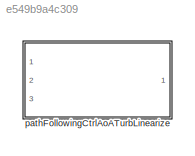
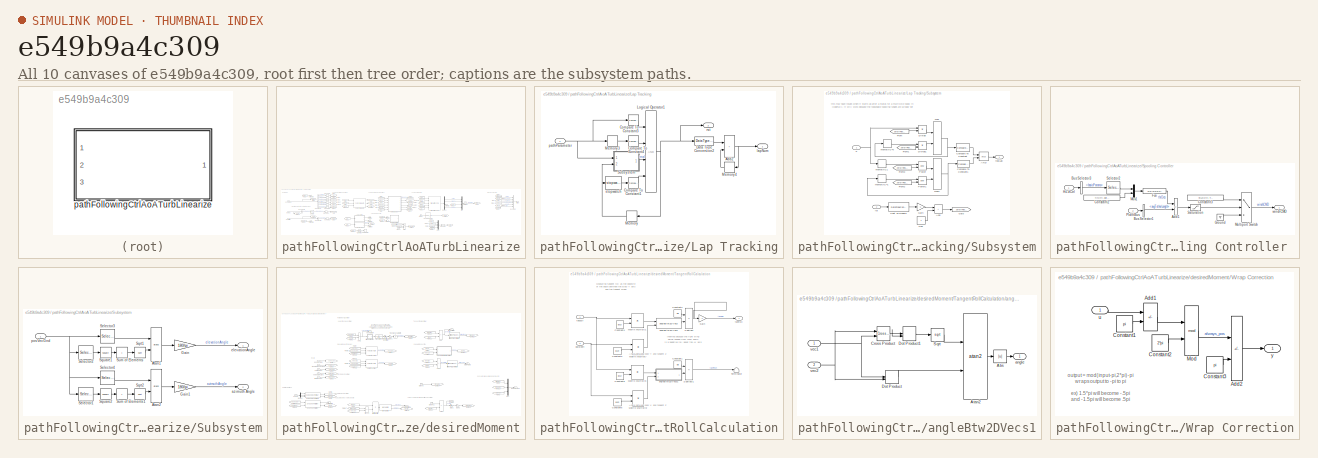
[diagram: thumbnail index - all 10 canvases of the model, root first then tree order]
MODEL slx_e549b9a4c309
KIND library
CONFIG AbsTol = auto
CONFIG EnableMultiTasking = off
CONFIG FixedStep = auto
CONFIG MaxStep = auto
CONFIG MinStep = auto
CONFIG RelTol = 1e-3
CONFIG SampleTimeConstraint = Unconstrained
CONFIG SolverName = VariableStepAuto
CONFIG StartTime = 0.0
CONFIG StopTime = 10.0
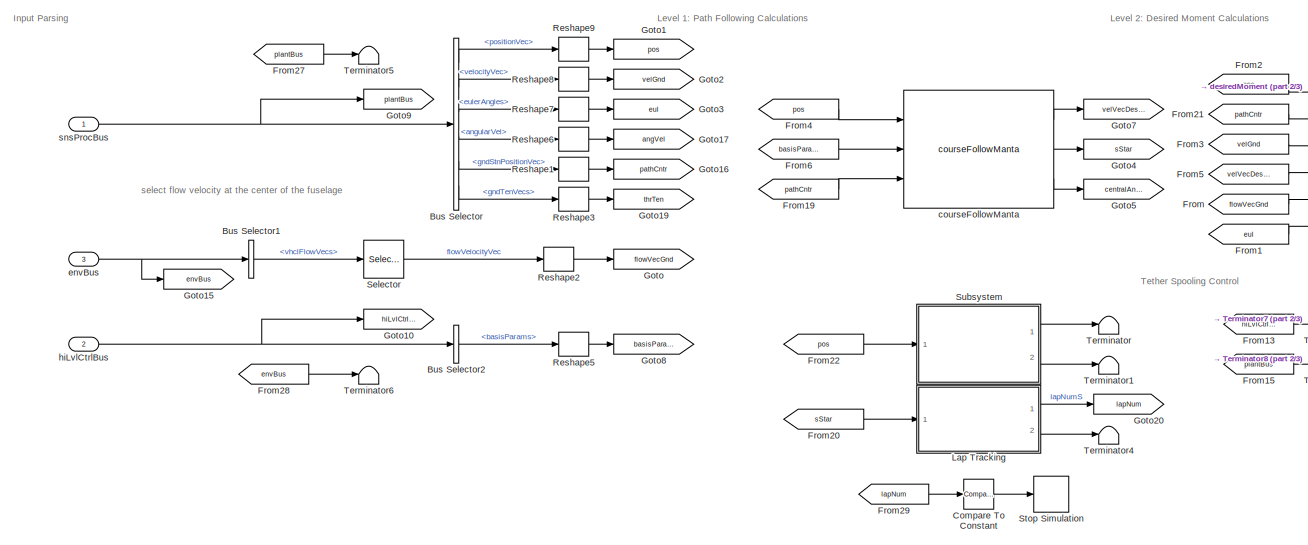
[diagram: pathFollowingCtrlAoATurbLinearize - part 1/3, left side, full height]
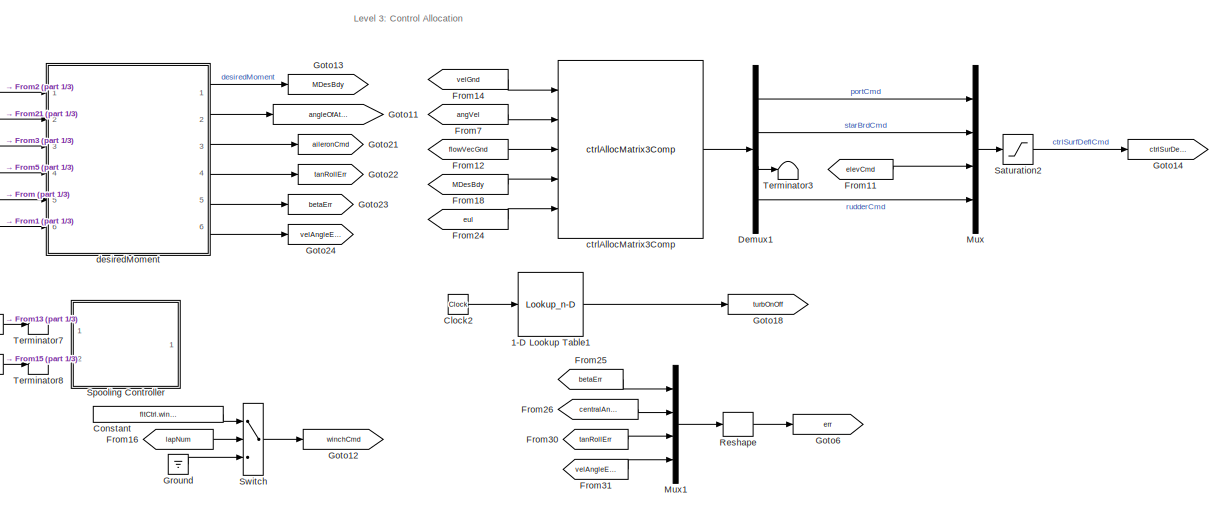
[diagram: pathFollowingCtrlAoATurbLinearize - part 2/3, center side, full height]
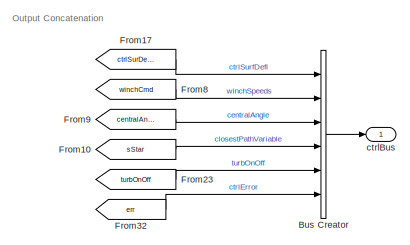
[diagram: pathFollowingCtrlAoATurbLinearize - part 3/3, top right region]
BLOCK [SubSystem] pathFollowingCtrlAoATurbLinearize
  InitFcn = initializeBussesFromBlock(gcb)
  LoadFcn = initializeBussesFromBlock(gcb)
  MinAlgLoopOccurrences = on
  Ports = [3, 1]
  RequestExecContextInheritance = off
  StartFcn = initializeBussesFromBlock(gcb)
  VariantControl = strcmpi(FLIGHTCONTROLLER,'pathFollowingControllerMantaBandLin')
BLOCK [Lookup_n-D] pathFollowingCtrlAoATurbLinearize/1-D Lookup Table1
  BreakpointsForDimension1 = [0 1000 2000]
  InputPortMap = u0
  InternalRulePriority = Speed
  InterpMethod = Flat
  NumberOfTableDimensions = 1
  Ports = [1, 1]
  RndMeth = Simplest
  Table = [0 0 0]
BLOCK [BusCreator] pathFollowingCtrlAoATurbLinearize/Bus Creator
  DisplayOption = bar
  InheritFromInputs = off
  Inputs = 6
  OutDataTypeStr = Bus: fltCtrlBus
  Ports = [6, 1]
BLOCK [BusSelector] pathFollowingCtrlAoATurbLinearize/Bus Selector
  OutputSignals = positionVec,velocityVec,eulerAngles,angularVel,gndStnPositionVec,gndTenVecs
  Ports = [1, 6]
BLOCK [BusSelector] pathFollowingCtrlAoATurbLinearize/Bus Selector1
  OutputSignals = vhclFlowVecs
  Ports = [1, 1]
BLOCK [BusSelector] pathFollowingCtrlAoATurbLinearize/Bus Selector2
  OutputSignals = basisParams
  Ports = [1, 1]
BLOCK [Clock] pathFollowingCtrlAoATurbLinearize/Clock2
BLOCK [Reference] pathFollowingCtrlAoATurbLinearize/Compare To Constant  REF=simulink/Logic and Bit
Operations/Compare
To Constant
  Ports = [1, 1]
  SourceBlock = simulink/Logic and Bit\nOperations/Compare\nTo Constant
  SourceProductBaseCode = SL
  SourceType = Compare To Constant
BLOCK [Constant] pathFollowingCtrlAoATurbLinearize/Constant
  Value = fltCtrl.winchSpeedIn.Value
BLOCK [Demux] pathFollowingCtrlAoATurbLinearize/Demux1
  Ports = [1, 4]
BLOCK [From] pathFollowingCtrlAoATurbLinearize/From
  GotoTag = flowVecGnd
BLOCK [From] pathFollowingCtrlAoATurbLinearize/From1
  GotoTag = eul
BLOCK [From] pathFollowingCtrlAoATurbLinearize/From10
  GotoTag = sStar
BLOCK [From] pathFollowingCtrlAoATurbLinearize/From11
  GotoTag = elevCmd
BLOCK [From] pathFollowingCtrlAoATurbLinearize/From12
  GotoTag = flowVecGnd
BLOCK [From] pathFollowingCtrlAoATurbLinearize/From13
  GotoTag = hiLvlCtrlBus
BLOCK [From] pathFollowingCtrlAoATurbLinearize/From14
  GotoTag = velGnd
BLOCK [From] pathFollowingCtrlAoATurbLinearize/From15
  GotoTag = plantBus
BLOCK [From] pathFollowingCtrlAoATurbLinearize/From16
  GotoTag = lapNum
BLOCK [From] pathFollowingCtrlAoATurbLinearize/From17
  GotoTag = ctrlSurDefl
BLOCK [From] pathFollowingCtrlAoATurbLinearize/From18
  GotoTag = MDesBdy
BLOCK [From] pathFollowingCtrlAoATurbLinearize/From19
  GotoTag = pathCntr
BLOCK [From] pathFollowingCtrlAoATurbLinearize/From2
  GotoTag = pos
BLOCK [From] pathFollowingCtrlAoATurbLinearize/From20
  GotoTag = sStar
BLOCK [From] pathFollowingCtrlAoATurbLinearize/From21
  GotoTag = pathCntr
BLOCK [From] pathFollowingCtrlAoATurbLinearize/From22
  GotoTag = pos
BLOCK [From] pathFollowingCtrlAoATurbLinearize/From23
  GotoTag = turbOnOff
BLOCK [From] pathFollowingCtrlAoATurbLinearize/From24
  GotoTag = eul
BLOCK [From] pathFollowingCtrlAoATurbLinearize/From25
  GotoTag = betaErr
BLOCK [From] pathFollowingCtrlAoATurbLinearize/From26
  GotoTag = centralAngle
BLOCK [From] pathFollowingCtrlAoATurbLinearize/From27
  GotoTag = plantBus
BLOCK [From] pathFollowingCtrlAoATurbLinearize/From28
  GotoTag = envBus
BLOCK [From] pathFollowingCtrlAoATurbLinearize/From29
  GotoTag = lapNum
BLOCK [From] pathFollowingCtrlAoATurbLinearize/From3
  GotoTag = velGnd
BLOCK [From] pathFollowingCtrlAoATurbLinearize/From30
  GotoTag = tanRollErr
BLOCK [From] pathFollowingCtrlAoATurbLinearize/From31
  GotoTag = velAngleErr
BLOCK [From] pathFollowingCtrlAoATurbLinearize/From32
  GotoTag = err
BLOCK [From] pathFollowingCtrlAoATurbLinearize/From4
  GotoTag = pos
BLOCK [From] pathFollowingCtrlAoATurbLinearize/From5
  GotoTag = velVecDesGnd
BLOCK [From] pathFollowingCtrlAoATurbLinearize/From6
  GotoTag = basisParams
BLOCK [From] pathFollowingCtrlAoATurbLinearize/From7
  GotoTag = angVel
BLOCK [From] pathFollowingCtrlAoATurbLinearize/From8
  GotoTag = winchCmd
BLOCK [From] pathFollowingCtrlAoATurbLinearize/From9
  GotoTag = centralAngle
BLOCK [Goto] pathFollowingCtrlAoATurbLinearize/Goto
  GotoTag = flowVecGnd
BLOCK [Goto] pathFollowingCtrlAoATurbLinearize/Goto1
  GotoTag = pos
BLOCK [Goto] pathFollowingCtrlAoATurbLinearize/Goto10
  GotoTag = hiLvlCtrlBus
BLOCK [Goto] pathFollowingCtrlAoATurbLinearize/Goto11
  GotoTag = angleOfAttack
BLOCK [Goto] pathFollowingCtrlAoATurbLinearize/Goto12
  GotoTag = winchCmd
BLOCK [Goto] pathFollowingCtrlAoATurbLinearize/Goto13
  GotoTag = MDesBdy
BLOCK [Goto] pathFollowingCtrlAoATurbLinearize/Goto14
  GotoTag = ctrlSurDefl
BLOCK [Goto] pathFollowingCtrlAoATurbLinearize/Goto15
  GotoTag = envBus
BLOCK [Goto] pathFollowingCtrlAoATurbLinearize/Goto16
  GotoTag = pathCntr
BLOCK [Goto] pathFollowingCtrlAoATurbLinearize/Goto17
  GotoTag = angVel
BLOCK [Goto] pathFollowingCtrlAoATurbLinearize/Goto18
  GotoTag = turbOnOff
BLOCK [Goto] pathFollowingCtrlAoATurbLinearize/Goto19
  GotoTag = thrTen
BLOCK [Goto] pathFollowingCtrlAoATurbLinearize/Goto2
  GotoTag = velGnd
BLOCK [Goto] pathFollowingCtrlAoATurbLinearize/Goto20
  GotoTag = lapNum
BLOCK [Goto] pathFollowingCtrlAoATurbLinearize/Goto21
  GotoTag = aileronCmd
BLOCK [Goto] pathFollowingCtrlAoATurbLinearize/Goto22
  GotoTag = tanRollErr
BLOCK [Goto] pathFollowingCtrlAoATurbLinearize/Goto23
  GotoTag = betaErr
BLOCK [Goto] pathFollowingCtrlAoATurbLinearize/Goto24
  GotoTag = velAngleErr
BLOCK [Goto] pathFollowingCtrlAoATurbLinearize/Goto3
  GotoTag = eul
BLOCK [Goto] pathFollowingCtrlAoATurbLinearize/Goto4
  GotoTag = sStar
BLOCK [Goto] pathFollowingCtrlAoATurbLinearize/Goto5
  GotoTag = centralAngle
BLOCK [Goto] pathFollowingCtrlAoATurbLinearize/Goto6
  GotoTag = err
BLOCK [Goto] pathFollowingCtrlAoATurbLinearize/Goto7
  GotoTag = velVecDesGnd
BLOCK [Goto] pathFollowingCtrlAoATurbLinearize/Goto8
  GotoTag = basisParams
BLOCK [Goto] pathFollowingCtrlAoATurbLinearize/Goto9
  GotoTag = plantBus
BLOCK [Ground] pathFollowingCtrlAoATurbLinearize/Ground
BLOCK [SubSystem] pathFollowingCtrlAoATurbLinearize/Lap Tracking
  Ports = [1, 2]
  RequestExecContextInheritance = off
BLOCK [Sum] pathFollowingCtrlAoATurbLinearize/Lap Tracking/Add2
  IconShape = rectangular
  Ports = [2, 1]
BLOCK [Reference] pathFollowingCtrlAoATurbLinearize/Lap Tracking/Compare To Constant1  REF=simulink/Logic and Bit
Operations/Compare
To Constant
  Ports = [1, 1]
  SourceBlock = simulink/Logic and Bit\nOperations/Compare\nTo Constant
  SourceProductBaseCode = SL
  SourceType = Compare To Constant
BLOCK [Reference] pathFollowingCtrlAoATurbLinearize/Lap Tracking/Compare To Constant3  REF=simulink/Logic and Bit
Operations/Compare
To Constant
  Ports = [1, 1]
  SourceBlock = simulink/Logic and Bit\nOperations/Compare\nTo Constant
  SourceProductBaseCode = SL
  SourceType = Compare To Constant
BLOCK [Reference] pathFollowingCtrlAoATurbLinearize/Lap Tracking/Compare To Constant4  REF=simulink/Logic and Bit
Operations/Compare
To Constant
  Ports = [1, 1]
  SourceBlock = simulink/Logic and Bit\nOperations/Compare\nTo Constant
  SourceProductBaseCode = SL
  SourceType = Compare To Constant
BLOCK [DataTypeConversion] pathFollowingCtrlAoATurbLinearize/Lap Tracking/Data Type Conversion2
  OutDataTypeStr = double
  RndMeth = Floor
  SaturateOnIntegerOverflow = off
BLOCK [Logic] pathFollowingCtrlAoATurbLinearize/Lap Tracking/Logical Operator1
  AllPortsSameDT = off
  Inputs = 4
  OutDataTypeStr = boolean
  Ports = [4, 1]
BLOCK [Memory] pathFollowingCtrlAoATurbLinearize/Lap Tracking/Memory
  InitialCondition = false
BLOCK [Memory] pathFollowingCtrlAoATurbLinearize/Lap Tracking/Memory3
BLOCK [Memory] pathFollowingCtrlAoATurbLinearize/Lap Tracking/Memory4
BLOCK [SubSystem] pathFollowingCtrlAoATurbLinearize/Lap Tracking/Subsystem
  Ports = [2, 1]
  RequestExecContextInheritance = off
BLOCK [Logic] pathFollowingCtrlAoATurbLinearize/Lap Tracking/Subsystem/AND
  AllPortsSameDT = off
  OutDataTypeStr = boolean
  Ports = [2, 1]
BLOCK [Sum] pathFollowingCtrlAoATurbLinearize/Lap Tracking/Subsystem/Add
  IconShape = rectangular
  Ports = [2, 1]
BLOCK [DataTypeConversion] pathFollowingCtrlAoATurbLinearize/Lap Tracking/Subsystem/Cast To Double
  OutDataTypeStr = double
  RndMeth = Floor
  SaturateOnIntegerOverflow = off
BLOCK [Reference] pathFollowingCtrlAoATurbLinearize/Lap Tracking/Subsystem/Compare To Constant  REF=simulink/Logic and Bit
Operations/Compare
To Constant
  Ports = [1, 1]
  SourceBlock = simulink/Logic and Bit\nOperations/Compare\nTo Constant
  SourceProductBaseCode = SL
  SourceType = Compare To Constant
BLOCK [Reference] pathFollowingCtrlAoATurbLinearize/Lap Tracking/Subsystem/Compare To Constant1  REF=simulink/Logic and Bit
Operations/Compare
To Constant
  Ports = [1, 1]
  SourceBlock = simulink/Logic and Bit\nOperations/Compare\nTo Constant
  SourceProductBaseCode = SL
  SourceType = Compare To Constant
BLOCK [Product] pathFollowingCtrlAoATurbLinearize/Lap Tracking/Subsystem/Divide
  Inputs = **
  Ports = [2, 1]
BLOCK [Product] pathFollowingCtrlAoATurbLinearize/Lap Tracking/Subsystem/Divide1
  Inputs = **
  Ports = [2, 1]
BLOCK [From] pathFollowingCtrlAoATurbLinearize/Lap Tracking/Subsystem/From
  GotoTag = zeroIfReset
BLOCK [From] pathFollowingCtrlAoATurbLinearize/Lap Tracking/Subsystem/From1
  GotoTag = zeroIfReset
BLOCK [From] pathFollowingCtrlAoATurbLinearize/Lap Tracking/Subsystem/From2
  GotoTag = zeroIfReset
BLOCK [From] pathFollowingCtrlAoATurbLinearize/Lap Tracking/Subsystem/From3
  GotoTag = zeroIfReset
BLOCK [Gain] pathFollowingCtrlAoATurbLinearize/Lap Tracking/Subsystem/Gain
  Gain = -1
BLOCK [Goto] pathFollowingCtrlAoATurbLinearize/Lap Tracking/Subsystem/Goto
  GotoTag = zeroIfReset
BLOCK [MinMax] pathFollowingCtrlAoATurbLinearize/Lap Tracking/Subsystem/Max
  Function = max
  Inputs = 2
  Ports = [2, 1]
BLOCK [MinMax] pathFollowingCtrlAoATurbLinearize/Lap Tracking/Subsystem/Max1
  Inputs = 2
  Ports = [2, 1]
BLOCK [Constant] pathFollowingCtrlAoATurbLinearize/Lap Tracking/Subsystem/One
  OutDataTypeStr = Inherit: Inherit via back propagation
BLOCK [Math] pathFollowingCtrlAoATurbLinearize/Lap Tracking/Subsystem/Power
  Operator = pow
  Ports = [2, 1]
BLOCK [Math] pathFollowingCtrlAoATurbLinearize/Lap Tracking/Subsystem/Power1
  Operator = pow
  Ports = [2, 1]
BLOCK [Inport] pathFollowingCtrlAoATurbLinearize/Lap Tracking/Subsystem/S
BLOCK [Memory] pathFollowingCtrlAoATurbLinearize/Lap Tracking/Subsystem/memoryIC1
  InitialCondition = 1
BLOCK [Memory] pathFollowingCtrlAoATurbLinearize/Lap Tracking/Subsystem/memoryIC=0
BLOCK [Memory] pathFollowingCtrlAoATurbLinearize/Lap Tracking/Subsystem/memoryIC=1
  InitialCondition = 1
BLOCK [Outport] pathFollowingCtrlAoATurbLinearize/Lap Tracking/Subsystem/realLap
BLOCK [Inport] pathFollowingCtrlAoATurbLinearize/Lap Tracking/Subsystem/rst
  Port = 2
BLOCK [Outport] pathFollowingCtrlAoATurbLinearize/Lap Tracking/lapNum
  VectorParamsAs1DForOutWhenUnconnected = off
BLOCK [Inport] pathFollowingCtrlAoATurbLinearize/Lap Tracking/pathParameter
BLOCK [Outport] pathFollowingCtrlAoATurbLinearize/Lap Tracking/rst
  Port = 2
  VectorParamsAs1DForOutWhenUnconnected = off
BLOCK [Reference] pathFollowingCtrlAoATurbLinearize/Lap Tracking/stopwatch  REF=stopwatch_ul/stopwatch  (lib defined in slx_5231e8830116, slx_6b86a6863970)
  Ports = [1, 1]
  SourceBlock = stopwatch_ul/stopwatch
  SourceType = SubSystem
BLOCK [Mux] pathFollowingCtrlAoATurbLinearize/Mux
  DisplayOption = bar
  Ports = [4, 1]
BLOCK [Mux] pathFollowingCtrlAoATurbLinearize/Mux1
  DisplayOption = bar
  Ports = [4, 1]
BLOCK [Reshape] pathFollowingCtrlAoATurbLinearize/Reshape
  OutputDimensionality = Column vector (2-D)
  Ports = [1, 1]
BLOCK [Reshape] pathFollowingCtrlAoATurbLinearize/Reshape1
  OutputDimensionality = Column vector (2-D)
  Ports = [1, 1]
BLOCK [Reshape] pathFollowingCtrlAoATurbLinearize/Reshape2
  OutputDimensionality = Column vector (2-D)
  Ports = [1, 1]
BLOCK [Reshape] pathFollowingCtrlAoATurbLinearize/Reshape3
  OutputDimensionality = Column vector (2-D)
  Ports = [1, 1]
BLOCK [Reshape] pathFollowingCtrlAoATurbLinearize/Reshape5
  OutputDimensionality = Column vector (2-D)
  Ports = [1, 1]
BLOCK [Reshape] pathFollowingCtrlAoATurbLinearize/Reshape6
  OutputDimensionality = Column vector (2-D)
  Ports = [1, 1]
BLOCK [Reshape] pathFollowingCtrlAoATurbLinearize/Reshape7
  OutputDimensionality = Column vector (2-D)
  Ports = [1, 1]
BLOCK [Reshape] pathFollowingCtrlAoATurbLinearize/Reshape8
  OutputDimensionality = Column vector (2-D)
  Ports = [1, 1]
BLOCK [Reshape] pathFollowingCtrlAoATurbLinearize/Reshape9
  OutputDimensionality = Column vector (2-D)
  Ports = [1, 1]
BLOCK [Saturate] pathFollowingCtrlAoATurbLinearize/Saturation2
  LowerLimit = pathCtrl.controlSigMax.lowerLimit.Value
  UpperLimit = pathCtrl.controlSigMax.upperLimit.Value
BLOCK [Selector] pathFollowingCtrlAoATurbLinearize/Selector
  IndexOptions = Select all,Index vector (dialog)
  Indices = [1 3],5
  InputPortWidth = 3
  NumberOfDimensions = 2
  OutputSizes = 1,1
  Ports = [1, 1]
BLOCK [SubSystem] pathFollowingCtrlAoATurbLinearize/Spooling Controller 
  Commented = on
  Ports = [2, 1]
  RequestExecContextInheritance = off
BLOCK [Sum] pathFollowingCtrlAoATurbLinearize/Spooling Controller /Add1
  IconShape = rectangular
  Inputs = +-
  Ports = [2, 1]
BLOCK [BusSelector] pathFollowingCtrlAoATurbLinearize/Spooling Controller /Bus Selector1
  OutputSignals = avgTetherLength
  Ports = [1, 1]
BLOCK [BusSelector] pathFollowingCtrlAoATurbLinearize/Spooling Controller /Bus Selector3
  OutputSignals = basisParams
  Ports = [1, 1]
BLOCK [Constant] pathFollowingCtrlAoATurbLinearize/Spooling Controller /Constant2
  Value = fltCtrl.optAltitude.Value
BLOCK [Constant] pathFollowingCtrlAoATurbLinearize/Spooling Controller /Constant3
  Value = hiLvlCtrl.ThrCtrl.Value
BLOCK [Fcn] pathFollowingCtrlAoATurbLinearize/Spooling Controller /Fcn
  Expr = u(2)/sin(u(1))
BLOCK [Ground] pathFollowingCtrlAoATurbLinearize/Spooling Controller /Ground
BLOCK [Inport] pathFollowingCtrlAoATurbLinearize/Spooling Controller /HiLvlCtrl
BLOCK [MultiPortSwitch] pathFollowingCtrlAoATurbLinearize/Spooling Controller /Multiport Switch
  DataPortIndices = {0,1}
  DataPortOrder = Specify indices
  InputSameDT = off
  Inputs = 2
  Ports = [3, 1]
  SaturateOnIntegerOverflow = off
BLOCK [Mux] pathFollowingCtrlAoATurbLinearize/Spooling Controller /Mux1
  DisplayOption = bar
  Inputs = 2
  Ports = [2, 1]
BLOCK [Inport] pathFollowingCtrlAoATurbLinearize/Spooling Controller /PlantBus
  Port = 2
BLOCK [Saturate] pathFollowingCtrlAoATurbLinearize/Spooling Controller /Saturation
  LowerLimit = -.25
  UpperLimit = .25
BLOCK [Selector] pathFollowingCtrlAoATurbLinearize/Spooling Controller /Selector2
  IndexOptions = Index vector (dialog)
  Indices = 3
  InputPortWidth = 5
  OutputSizes = 1
  Ports = [1, 1]
BLOCK [Outport] pathFollowingCtrlAoATurbLinearize/Spooling Controller /winchCMD
BLOCK [Stop] pathFollowingCtrlAoATurbLinearize/Stop Simulation
BLOCK [SubSystem] pathFollowingCtrlAoATurbLinearize/Subsystem
  Ports = [1, 2]
  RequestExecContextInheritance = off
BLOCK [Trigonometry] pathFollowingCtrlAoATurbLinearize/Subsystem/Atan1
  Operator = atan2
  Ports = [2, 1]
BLOCK [Trigonometry] pathFollowingCtrlAoATurbLinearize/Subsystem/Atan2
  Operator = atan2
  Ports = [2, 1]
BLOCK [Gain] pathFollowingCtrlAoATurbLinearize/Subsystem/Gain
  Gain = 180/pi
BLOCK [Gain] pathFollowingCtrlAoATurbLinearize/Subsystem/Gain1
  Gain = 180/pi
BLOCK [Selector] pathFollowingCtrlAoATurbLinearize/Subsystem/Selector1
  IndexOptions = Index vector (dialog)
  Indices = 1
  InputPortWidth = 3
  OutputSizes = 1
  Ports = [1, 1]
BLOCK [Selector] pathFollowingCtrlAoATurbLinearize/Subsystem/Selector2
  IndexOptions = Index vector (dialog)
  Indices = [1 2]
  InputPortWidth = 3
  OutputSizes = 1
  Ports = [1, 1]
BLOCK [Selector] pathFollowingCtrlAoATurbLinearize/Subsystem/Selector3
  IndexOptions = Index vector (dialog)
  Indices = 3
  InputPortWidth = 3
  OutputSizes = 1
  Ports = [1, 1]
BLOCK [Selector] pathFollowingCtrlAoATurbLinearize/Subsystem/Selector4
  IndexOptions = Index vector (dialog)
  Indices = 2
  InputPortWidth = 3
  OutputSizes = 1
  Ports = [1, 1]
BLOCK [Sqrt] pathFollowingCtrlAoATurbLinearize/Subsystem/Sqrt1
BLOCK [Sqrt] pathFollowingCtrlAoATurbLinearize/Subsystem/Sqrt2
BLOCK [Math] pathFollowingCtrlAoATurbLinearize/Subsystem/Square1
  Operator = square
  Ports = [1, 1]
  SignedPower = on
BLOCK [Math] pathFollowingCtrlAoATurbLinearize/Subsystem/Square2
  Operator = square
  Ports = [1, 1]
  SignedPower = on
BLOCK [Sum] pathFollowingCtrlAoATurbLinearize/Subsystem/Sum of Elements
  IconShape = rectangular
  Inputs = +
  Ports = [1, 1]
BLOCK [Sum] pathFollowingCtrlAoATurbLinearize/Subsystem/Sum of Elements1
  IconShape = rectangular
  Inputs = +
  Ports = [1, 1]
BLOCK [Outport] pathFollowingCtrlAoATurbLinearize/Subsystem/azimuth Angle
  Port = 2
BLOCK [Outport] pathFollowingCtrlAoATurbLinearize/Subsystem/elevationAngle
BLOCK [Inport] pathFollowingCtrlAoATurbLinearize/Subsystem/posVecGnd
BLOCK [Switch] pathFollowingCtrlAoATurbLinearize/Switch
  InputSameDT = off
  SaturateOnIntegerOverflow = off
  Threshold = fltCtrl.firstSpoolLap.Value
BLOCK [Terminator] pathFollowingCtrlAoATurbLinearize/Terminator
BLOCK [Terminator] pathFollowingCtrlAoATurbLinearize/Terminator1
BLOCK [Terminator] pathFollowingCtrlAoATurbLinearize/Terminator3
BLOCK [Terminator] pathFollowingCtrlAoATurbLinearize/Terminator4
BLOCK [Terminator] pathFollowingCtrlAoATurbLinearize/Terminator5
BLOCK [Terminator] pathFollowingCtrlAoATurbLinearize/Terminator6
BLOCK [Terminator] pathFollowingCtrlAoATurbLinearize/Terminator7
BLOCK [Terminator] pathFollowingCtrlAoATurbLinearize/Terminator8
BLOCK [Reference] pathFollowingCtrlAoATurbLinearize/courseFollowManta  REF=courseFollowManta_cl/courseFollowManta
  Ports = [3, 3]
  SourceBlock = courseFollowManta_cl/courseFollowManta
  SourceType = SubSystem
BLOCK [Reference] pathFollowingCtrlAoATurbLinearize/ctrlAllocMatrix3Comp  REF=ctrlAllocMatrix3Comp_cl/ctrlAllocMatrix3Comp
  Ports = [5, 1]
  SourceBlock = ctrlAllocMatrix3Comp_cl/ctrlAllocMatrix3Comp
BLOCK [Outport] pathFollowingCtrlAoATurbLinearize/ctrlBus
  OutDataTypeStr = Bus: fltCtrlBus
  VectorParamsAs1DForOutWhenUnconnected = off
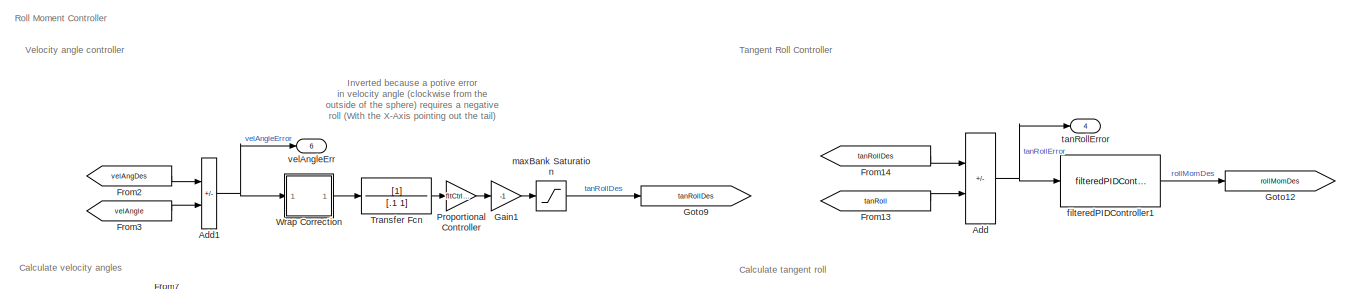
[diagram: pathFollowingCtrlAoATurbLinearize/desiredMoment - part 1/4, top center region]
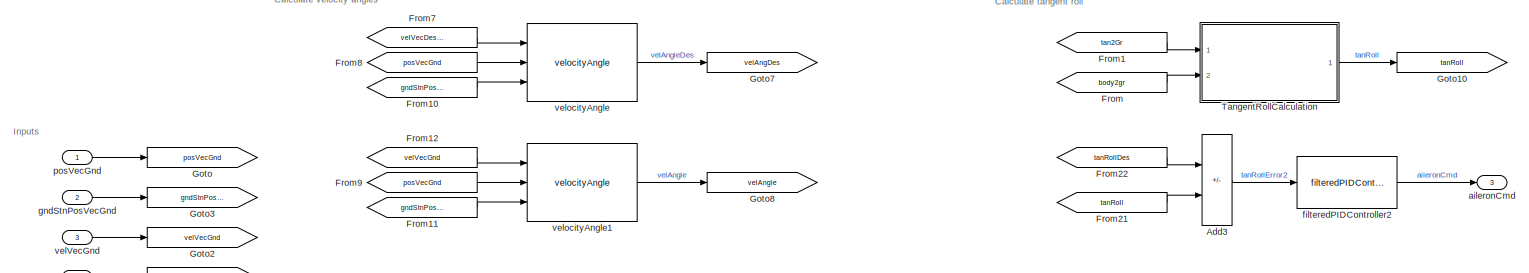
[diagram: pathFollowingCtrlAoATurbLinearize/desiredMoment - part 2/4, central region]
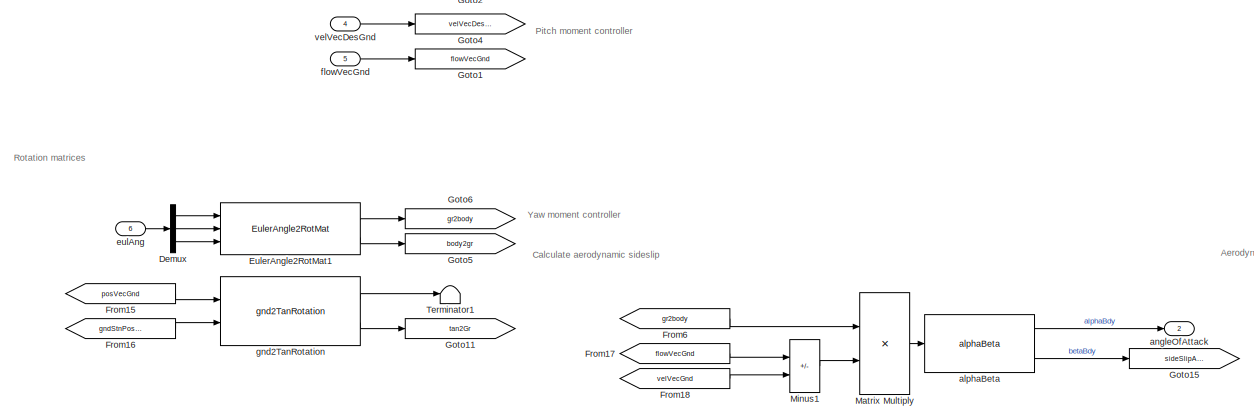
[diagram: pathFollowingCtrlAoATurbLinearize/desiredMoment - part 3/4, bottom left region]
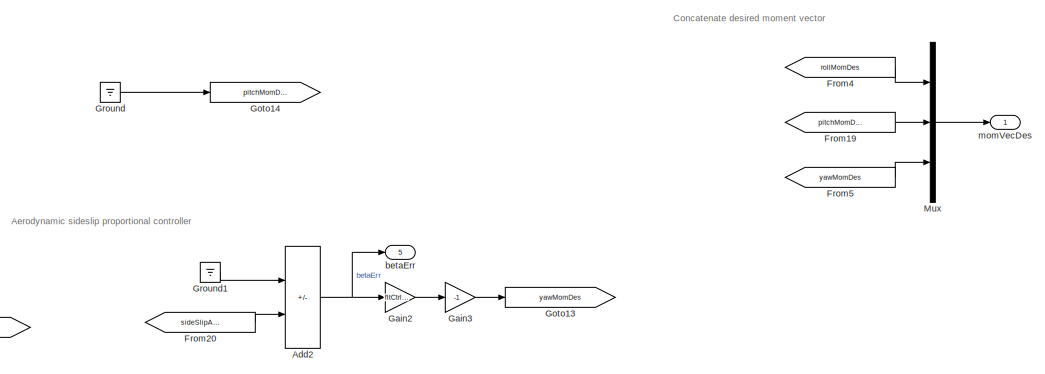
[diagram: pathFollowingCtrlAoATurbLinearize/desiredMoment - part 4/4, bottom right region]
BLOCK [SubSystem] pathFollowingCtrlAoATurbLinearize/desiredMoment
  Ports = [6, 6]
  RequestExecContextInheritance = off
BLOCK [Sum] pathFollowingCtrlAoATurbLinearize/desiredMoment/Add
  IconShape = rectangular
  Inputs = +-
  Ports = [2, 1]
BLOCK [Sum] pathFollowingCtrlAoATurbLinearize/desiredMoment/Add1
  IconShape = rectangular
  Inputs = +-
  Ports = [2, 1]
BLOCK [Sum] pathFollowingCtrlAoATurbLinearize/desiredMoment/Add2
  IconShape = rectangular
  Inputs = +-
  Ports = [2, 1]
BLOCK [Sum] pathFollowingCtrlAoATurbLinearize/desiredMoment/Add3
  IconShape = rectangular
  Inputs = +-
  Ports = [2, 1]
BLOCK [Demux] pathFollowingCtrlAoATurbLinearize/desiredMoment/Demux
  Outputs = 3
  Ports = [1, 3]
BLOCK [Reference] pathFollowingCtrlAoATurbLinearize/desiredMoment/EulerAngle2RotMat1  REF=eulAng2RotMat_ul/EulerAngle2RotMat
  Ports = [3, 2]
  SourceBlock = eulAng2RotMat_ul/EulerAngle2RotMat
  SourceType = SubSystem
BLOCK [From] pathFollowingCtrlAoATurbLinearize/desiredMoment/From
  GotoTag = body2gr
BLOCK [From] pathFollowingCtrlAoATurbLinearize/desiredMoment/From1
  GotoTag = tan2Gr
BLOCK [From] pathFollowingCtrlAoATurbLinearize/desiredMoment/From10
  GotoTag = gndStnPosVecGnd
BLOCK [From] pathFollowingCtrlAoATurbLinearize/desiredMoment/From11
  GotoTag = gndStnPosVecGnd
BLOCK [From] pathFollowingCtrlAoATurbLinearize/desiredMoment/From12
  GotoTag = velVecGnd
BLOCK [From] pathFollowingCtrlAoATurbLinearize/desiredMoment/From13
  GotoTag = tanRoll
BLOCK [From] pathFollowingCtrlAoATurbLinearize/desiredMoment/From14
  GotoTag = tanRollDes
BLOCK [From] pathFollowingCtrlAoATurbLinearize/desiredMoment/From15
  GotoTag = posVecGnd
BLOCK [From] pathFollowingCtrlAoATurbLinearize/desiredMoment/From16
  GotoTag = gndStnPosVecGnd
BLOCK [From] pathFollowingCtrlAoATurbLinearize/desiredMoment/From17
  GotoTag = flowVecGnd
BLOCK [From] pathFollowingCtrlAoATurbLinearize/desiredMoment/From18
  GotoTag = velVecGnd
BLOCK [From] pathFollowingCtrlAoATurbLinearize/desiredMoment/From19
  GotoTag = pitchMomDes
BLOCK [From] pathFollowingCtrlAoATurbLinearize/desiredMoment/From2
  GotoTag = velAngDes
BLOCK [From] pathFollowingCtrlAoATurbLinearize/desiredMoment/From20
  GotoTag = sideSlipAngle
BLOCK [From] pathFollowingCtrlAoATurbLinearize/desiredMoment/From21
  GotoTag = tanRoll
BLOCK [From] pathFollowingCtrlAoATurbLinearize/desiredMoment/From22
  GotoTag = tanRollDes
BLOCK [From] pathFollowingCtrlAoATurbLinearize/desiredMoment/From3
  GotoTag = velAngle
BLOCK [From] pathFollowingCtrlAoATurbLinearize/desiredMoment/From4
  GotoTag = rollMomDes
BLOCK [From] pathFollowingCtrlAoATurbLinearize/desiredMoment/From5
  GotoTag = yawMomDes
BLOCK [From] pathFollowingCtrlAoATurbLinearize/desiredMoment/From6
  GotoTag = gr2body
BLOCK [From] pathFollowingCtrlAoATurbLinearize/desiredMoment/From7
  GotoTag = velVecDesGnd
BLOCK [From] pathFollowingCtrlAoATurbLinearize/desiredMoment/From8
  GotoTag = posVecGnd
BLOCK [From] pathFollowingCtrlAoATurbLinearize/desiredMoment/From9
  GotoTag = posVecGnd
BLOCK [Gain] pathFollowingCtrlAoATurbLinearize/desiredMoment/Gain1
  Gain = -1
BLOCK [Gain] pathFollowingCtrlAoATurbLinearize/desiredMoment/Gain2
  Gain = fltCtrl.yawMoment.kp.Value
BLOCK [Gain] pathFollowingCtrlAoATurbLinearize/desiredMoment/Gain3
  Gain = -1
BLOCK [Goto] pathFollowingCtrlAoATurbLinearize/desiredMoment/Goto
  GotoTag = posVecGnd
BLOCK [Goto] pathFollowingCtrlAoATurbLinearize/desiredMoment/Goto1
  GotoTag = flowVecGnd
BLOCK [Goto] pathFollowingCtrlAoATurbLinearize/desiredMoment/Goto10
  GotoTag = tanRoll
BLOCK [Goto] pathFollowingCtrlAoATurbLinearize/desiredMoment/Goto11
  GotoTag = tan2Gr
BLOCK [Goto] pathFollowingCtrlAoATurbLinearize/desiredMoment/Goto12
  GotoTag = rollMomDes
BLOCK [Goto] pathFollowingCtrlAoATurbLinearize/desiredMoment/Goto13
  GotoTag = yawMomDes
BLOCK [Goto] pathFollowingCtrlAoATurbLinearize/desiredMoment/Goto14
  GotoTag = pitchMomDes
BLOCK [Goto] pathFollowingCtrlAoATurbLinearize/desiredMoment/Goto15
  GotoTag = sideSlipAngle
BLOCK [Goto] pathFollowingCtrlAoATurbLinearize/desiredMoment/Goto2
  GotoTag = velVecGnd
BLOCK [Goto] pathFollowingCtrlAoATurbLinearize/desiredMoment/Goto3
  GotoTag = gndStnPosVecGnd
BLOCK [Goto] pathFollowingCtrlAoATurbLinearize/desiredMoment/Goto4
  GotoTag = velVecDesGnd
BLOCK [Goto] pathFollowingCtrlAoATurbLinearize/desiredMoment/Goto5
  GotoTag = body2gr
BLOCK [Goto] pathFollowingCtrlAoATurbLinearize/desiredMoment/Goto6
  GotoTag = gr2body
BLOCK [Goto] pathFollowingCtrlAoATurbLinearize/desiredMoment/Goto7
  GotoTag = velAngDes
BLOCK [Goto] pathFollowingCtrlAoATurbLinearize/desiredMoment/Goto8
  GotoTag = velAngle
BLOCK [Goto] pathFollowingCtrlAoATurbLinearize/desiredMoment/Goto9
  GotoTag = tanRollDes
BLOCK [Ground] pathFollowingCtrlAoATurbLinearize/desiredMoment/Ground
BLOCK [Ground] pathFollowingCtrlAoATurbLinearize/desiredMoment/Ground1
BLOCK [Product] pathFollowingCtrlAoATurbLinearize/desiredMoment/Matrix Multiply
  Multiplication = Matrix(*)
  Ports = [2, 1]
BLOCK [Sum] pathFollowingCtrlAoATurbLinearize/desiredMoment/Minus1
  IconShape = rectangular
  Inputs = +-
  Ports = [2, 1]
BLOCK [Mux] pathFollowingCtrlAoATurbLinearize/desiredMoment/Mux
  DisplayOption = bar
  Inputs = 3
  Ports = [3, 1]
BLOCK [Gain] pathFollowingCtrlAoATurbLinearize/desiredMoment/Proportional Controller
  Gain = fltCtrl.tanRoll.kp.Value
BLOCK [SubSystem] pathFollowingCtrlAoATurbLinearize/desiredMoment/TangentRollCalculation
  Ports = [2, 1]
  RequestExecContextInheritance = off
BLOCK [Constant] pathFollowingCtrlAoATurbLinearize/desiredMoment/TangentRollCalculation/Constant1
  Value = pi/2
BLOCK [Constant] pathFollowingCtrlAoATurbLinearize/desiredMoment/TangentRollCalculation/Constant2
  Value = pi/2
BLOCK [Constant] pathFollowingCtrlAoATurbLinearize/desiredMoment/TangentRollCalculation/Constant3
  Value = [0 1 0]'
BLOCK [Constant] pathFollowingCtrlAoATurbLinearize/desiredMoment/TangentRollCalculation/Constant4
  Value = [0 0 1]'
BLOCK [Constant] pathFollowingCtrlAoATurbLinearize/desiredMoment/TangentRollCalculation/Constant5
  Value = [1 0 0]'
BLOCK [Constant] pathFollowingCtrlAoATurbLinearize/desiredMoment/TangentRollCalculation/Constant6
  Value = [0 0 1]'
BLOCK [Gain] pathFollowingCtrlAoATurbLinearize/desiredMoment/TangentRollCalculation/Gain
  Gain = -1
BLOCK [Product] pathFollowingCtrlAoATurbLinearize/desiredMoment/TangentRollCalculation/Matrix Multiply
  Multiplication = Matrix(*)
  Ports = [2, 1]
BLOCK [Product] pathFollowingCtrlAoATurbLinearize/desiredMoment/TangentRollCalculation/Matrix Multiply1
  Multiplication = Matrix(*)
  Ports = [2, 1]
BLOCK [Product] pathFollowingCtrlAoATurbLinearize/desiredMoment/TangentRollCalculation/Matrix Multiply2
  Multiplication = Matrix(*)
  Ports = [2, 1]
BLOCK [Product] pathFollowingCtrlAoATurbLinearize/desiredMoment/TangentRollCalculation/Matrix Multiply3
  Multiplication = Matrix(*)
  Ports = [2, 1]
BLOCK [Sum] pathFollowingCtrlAoATurbLinearize/desiredMoment/TangentRollCalculation/Subtract
  IconShape = rectangular
  Inputs = +-
  Ports = [2, 1]
BLOCK [Sum] pathFollowingCtrlAoATurbLinearize/desiredMoment/TangentRollCalculation/Subtract1
  IconShape = rectangular
  Inputs = +-
  Ports = [2, 1]
BLOCK [Terminator] pathFollowingCtrlAoATurbLinearize/desiredMoment/TangentRollCalculation/Terminator
BLOCK [Reference] pathFollowingCtrlAoATurbLinearize/desiredMoment/TangentRollCalculation/angleBtw2DVecs  REF=angleBtw2Vecs_ul/angleBtw2DVecs
  Ports = [2, 1]
  SourceBlock = angleBtw2Vecs_ul/angleBtw2DVecs
  SourceType = SubSystem
BLOCK [SubSystem] pathFollowingCtrlAoATurbLinearize/desiredMoment/TangentRollCalculation/angleBtw2DVecs1
  Ports = [2, 1]
  RequestExecContextInheritance = off
BLOCK [Abs] pathFollowingCtrlAoATurbLinearize/desiredMoment/TangentRollCalculation/angleBtw2DVecs1/Abs
  SaturateOnIntegerOverflow = off
BLOCK [Trigonometry] pathFollowingCtrlAoATurbLinearize/desiredMoment/TangentRollCalculation/angleBtw2DVecs1/Atan2
  Operator = atan2
  Ports = [2, 1]
BLOCK [Reference] pathFollowingCtrlAoATurbLinearize/desiredMoment/TangentRollCalculation/angleBtw2DVecs1/Cross Product  REF=vrlib/Utilities/Cross Product
  Ports = [2, 1]
  SourceBlock = vrlib/Utilities/Cross Product
  SourceProductBaseCode = SL
  SourceType = Cross Product
BLOCK [DotProduct] pathFollowingCtrlAoATurbLinearize/desiredMoment/TangentRollCalculation/angleBtw2DVecs1/Dot Product
  OutDataTypeStr = Inherit: Inherit via internal rule
BLOCK [DotProduct] pathFollowingCtrlAoATurbLinearize/desiredMoment/TangentRollCalculation/angleBtw2DVecs1/Dot Product1
  OutDataTypeStr = Inherit: Inherit via internal rule
BLOCK [Sqrt] pathFollowingCtrlAoATurbLinearize/desiredMoment/TangentRollCalculation/angleBtw2DVecs1/Sqrt
BLOCK [Outport] pathFollowingCtrlAoATurbLinearize/desiredMoment/TangentRollCalculation/angleBtw2DVecs1/angle
  VectorParamsAs1DForOutWhenUnconnected = off
BLOCK [Inport] pathFollowingCtrlAoATurbLinearize/desiredMoment/TangentRollCalculation/angleBtw2DVecs1/vec1
BLOCK [Inport] pathFollowingCtrlAoATurbLinearize/desiredMoment/TangentRollCalculation/angleBtw2DVecs1/vec2
  Port = 2
BLOCK [Inport] pathFollowingCtrlAoATurbLinearize/desiredMoment/TangentRollCalculation/bdy2Inert
  Port = 2
BLOCK [Inport] pathFollowingCtrlAoATurbLinearize/desiredMoment/TangentRollCalculation/tan2Gr
BLOCK [Outport] pathFollowingCtrlAoATurbLinearize/desiredMoment/TangentRollCalculation/tanRoll
  VectorParamsAs1DForOutWhenUnconnected = off
BLOCK [Terminator] pathFollowingCtrlAoATurbLinearize/desiredMoment/Terminator1
BLOCK [TransferFcn] pathFollowingCtrlAoATurbLinearize/desiredMoment/Transfer Fcn
  Denominator = [.1 1]
BLOCK [SubSystem] pathFollowingCtrlAoATurbLinearize/desiredMoment/Wrap Correction
  Ports = [1, 1]
  RequestExecContextInheritance = off
BLOCK [Sum] pathFollowingCtrlAoATurbLinearize/desiredMoment/Wrap Correction/Add1
  IconShape = rectangular
  Inputs = +-
  Ports = [2, 1]
BLOCK [Sum] pathFollowingCtrlAoATurbLinearize/desiredMoment/Wrap Correction/Add2
  IconShape = rectangular
  Inputs = +-
  Ports = [2, 1]
BLOCK [Constant] pathFollowingCtrlAoATurbLinearize/desiredMoment/Wrap Correction/Constant1
  Value = pi
BLOCK [Constant] pathFollowingCtrlAoATurbLinearize/desiredMoment/Wrap Correction/Constant2
  Value = 2*pi
BLOCK [Constant] pathFollowingCtrlAoATurbLinearize/desiredMoment/Wrap Correction/Constant3
  Value = pi
BLOCK [Math] pathFollowingCtrlAoATurbLinearize/desiredMoment/Wrap Correction/Mod
  Operator = mod
  Ports = [2, 1]
  SignedPower = on
BLOCK [Inport] pathFollowingCtrlAoATurbLinearize/desiredMoment/Wrap Correction/u
BLOCK [Outport] pathFollowingCtrlAoATurbLinearize/desiredMoment/Wrap Correction/y
  VectorParamsAs1DForOutWhenUnconnected = off
BLOCK [Outport] pathFollowingCtrlAoATurbLinearize/desiredMoment/aileronCmd
  Port = 3
  VectorParamsAs1DForOutWhenUnconnected = off
BLOCK [Reference] pathFollowingCtrlAoATurbLinearize/desiredMoment/alphaBeta  REF=alphaBeta_ul/alphaBeta
  Ports = [1, 2]
  SourceBlock = alphaBeta_ul/alphaBeta
  SourceType = SubSystem
BLOCK [Outport] pathFollowingCtrlAoATurbLinearize/desiredMoment/angleOfAttack
  Port = 2
  VectorParamsAs1DForOutWhenUnconnected = off
BLOCK [Outport] pathFollowingCtrlAoATurbLinearize/desiredMoment/betaErr
  Port = 5
BLOCK [Inport] pathFollowingCtrlAoATurbLinearize/desiredMoment/eulAng
  Port = 6
BLOCK [Reference] pathFollowingCtrlAoATurbLinearize/desiredMoment/filteredPIDController1  REF=filteredPIDController_ul/filteredPIDController
  Ports = [1, 1]
  SourceBlock = filteredPIDController_ul/filteredPIDController
BLOCK [Reference] pathFollowingCtrlAoATurbLinearize/desiredMoment/filteredPIDController2  REF=filteredPIDController_ul/filteredPIDController
  Ports = [1, 1]
  SourceBlock = filteredPIDController_ul/filteredPIDController
BLOCK [Inport] pathFollowingCtrlAoATurbLinearize/desiredMoment/flowVecGnd
  Port = 5
BLOCK [Reference] pathFollowingCtrlAoATurbLinearize/desiredMoment/gnd2TanRotation  REF=gnd2TanRotation_ul/gnd2TanRotation
  Ports = [2, 2]
  SourceBlock = gnd2TanRotation_ul/gnd2TanRotation
  SourceType = SubSystem
BLOCK [Inport] pathFollowingCtrlAoATurbLinearize/desiredMoment/gndStnPosVecGnd
  Port = 2
BLOCK [Saturate] pathFollowingCtrlAoATurbLinearize/desiredMoment/maxBank Saturation
  LowerLimit = pathCtrl.maxBank.lowerLimit.Value
  UpperLimit = pathCtrl.maxBank.upperLimit.Value
BLOCK [Outport] pathFollowingCtrlAoATurbLinearize/desiredMoment/momVecDes
  VectorParamsAs1DForOutWhenUnconnected = off
BLOCK [Inport] pathFollowingCtrlAoATurbLinearize/desiredMoment/posVecGnd
BLOCK [Outport] pathFollowingCtrlAoATurbLinearize/desiredMoment/tanRollError
  Port = 4
BLOCK [Outport] pathFollowingCtrlAoATurbLinearize/desiredMoment/velAngleErr
  Port = 6
BLOCK [Inport] pathFollowingCtrlAoATurbLinearize/desiredMoment/velVecDesGnd
  Port = 4
BLOCK [Inport] pathFollowingCtrlAoATurbLinearize/desiredMoment/velVecGnd
  Port = 3
BLOCK [Reference] pathFollowingCtrlAoATurbLinearize/desiredMoment/velocityAngle  REF=velocityAngle_ul/velocityAngle
  Ports = [3, 1]
  SourceBlock = velocityAngle_ul/velocityAngle
  SourceType = SubSystem
BLOCK [Reference] pathFollowingCtrlAoATurbLinearize/desiredMoment/velocityAngle1  REF=velocityAngle_ul/velocityAngle
  Ports = [3, 1]
  SourceBlock = velocityAngle_ul/velocityAngle
  SourceType = SubSystem
BLOCK [Inport] pathFollowingCtrlAoATurbLinearize/envBus
  OutDataTypeStr = Bus: envBus
  Port = 3
BLOCK [Inport] pathFollowingCtrlAoATurbLinearize/hiLvlCtrlBus
  OutDataTypeStr = Bus: hiLvlCtrlBus
  Port = 2
BLOCK [Inport] pathFollowingCtrlAoATurbLinearize/snsProcBus
  OutDataTypeStr = Bus: sensorsProcessingBus
ANNOTATION pathFollowingCtrlAoATurbLinearize: Input Parsing
ANNOTATION pathFollowingCtrlAoATurbLinearize: Level 1: Path Following Calculations
ANNOTATION pathFollowingCtrlAoATurbLinearize: Level 2: Desired Moment Calculations
ANNOTATION pathFollowingCtrlAoATurbLinearize: Level 3: Control Allocation
ANNOTATION pathFollowingCtrlAoATurbLinearize: Output Concatenation
ANNOTATION pathFollowingCtrlAoATurbLinearize: Tether Spooling Control
ANNOTATION pathFollowingCtrlAoATurbLinearize: select flow velocity at the center of the fuselage
ANNOTATION pathFollowingCtrlAoATurbLinearize/Lap Tracking/Subsystem: this may have issues when it starts up after a hiatus for a multicycle spool in Hopefully, it will work because the reasonable spooling ranges are already set
ANNOTATION pathFollowingCtrlAoATurbLinearize/desiredMoment: Aerodynamic sideslip proportional controller
ANNOTATION pathFollowingCtrlAoATurbLinearize/desiredMoment: Calculate aerodynamic sideslip
ANNOTATION pathFollowingCtrlAoATurbLinearize/desiredMoment: Calculate tangent roll
ANNOTATION pathFollowingCtrlAoATurbLinearize/desiredMoment: Calculate velocity angles
ANNOTATION pathFollowingCtrlAoATurbLinearize/desiredMoment: Concatenate desired moment vector
ANNOTATION pathFollowingCtrlAoATurbLinearize/desiredMoment: Inputs
ANNOTATION pathFollowingCtrlAoATurbLinearize/desiredMoment: Inverted because a potive error in velocity angle (clockwise from the outside of the sphere) requires a negative roll (With the X-Axis pointing out the tail)
ANNOTATION pathFollowingCtrlAoATurbLinearize/desiredMoment: Pitch moment controller
ANNOTATION pathFollowingCtrlAoATurbLinearize/desiredMoment: Roll Moment Controller
ANNOTATION pathFollowingCtrlAoATurbLinearize/desiredMoment: Rotation matrices
ANNOTATION pathFollowingCtrlAoATurbLinearize/desiredMoment: Tangent Roll Controller
ANNOTATION pathFollowingCtrlAoATurbLinearize/desiredMoment: Velocity angle controller
ANNOTATION pathFollowingCtrlAoATurbLinearize/desiredMoment: Yaw moment controller
ANNOTATION pathFollowingCtrlAoATurbLinearize/desiredMoment/TangentRollCalculation: Measuring tangent roll as the opposite of the angle between the Body Y axis and the tangent plane
ANNOTATION pathFollowingCtrlAoATurbLinearize/desiredMoment/TangentRollCalculation: Angle between body X and tangent Z
ANNOTATION pathFollowingCtrlAoATurbLinearize/desiredMoment/TangentRollCalculation: Angle between body Y and tangent Z
ANNOTATION pathFollowingCtrlAoATurbLinearize/desiredMoment/TangentRollCalculation: Inverted because the right wing being <90deg from Local down is a negative roll about the +X axis
ANNOTATION pathFollowingCtrlAoATurbLinearize/desiredMoment/Wrap Correction: output = mod(input-pi,2*pi)-pi wraps output to -pi to pi ex) 1.5*pi will become -.5pi and -1.5pi will become .5pi to visualize, plot the fuction above
LINE pathFollowingCtrlAoATurbLinearize/1-D Lookup Table1:1 -> pathFollowingCtrlAoATurbLinearize/Goto18:1
LINE pathFollowingCtrlAoATurbLinearize/Bus Creator:1 -> pathFollowingCtrlAoATurbLinearize/ctrlBus:1
LINE pathFollowingCtrlAoATurbLinearize/Bus Selector1:1 -> pathFollowingCtrlAoATurbLinearize/Selector:1
LINE pathFollowingCtrlAoATurbLinearize/Bus Selector2:1 -> pathFollowingCtrlAoATurbLinearize/Reshape5:1
LINE pathFollowingCtrlAoATurbLinearize/Bus Selector:1 -> pathFollowingCtrlAoATurbLinearize/Reshape9:1
LINE pathFollowingCtrlAoATurbLinearize/Bus Selector:2 -> pathFollowingCtrlAoATurbLinearize/Reshape8:1
LINE pathFollowingCtrlAoATurbLinearize/Bus Selector:3 -> pathFollowingCtrlAoATurbLinearize/Reshape7:1
LINE pathFollowingCtrlAoATurbLinearize/Bus Selector:4 -> pathFollowingCtrlAoATurbLinearize/Reshape6:1
LINE pathFollowingCtrlAoATurbLinearize/Bus Selector:5 -> pathFollowingCtrlAoATurbLinearize/Reshape1:1
LINE pathFollowingCtrlAoATurbLinearize/Bus Selector:6 -> pathFollowingCtrlAoATurbLinearize/Reshape3:1
LINE pathFollowingCtrlAoATurbLinearize/Clock2:1 -> pathFollowingCtrlAoATurbLinearize/1-D Lookup Table1:1
LINE pathFollowingCtrlAoATurbLinearize/Compare To Constant:1 -> pathFollowingCtrlAoATurbLinearize/Stop Simulation:1
LINE pathFollowingCtrlAoATurbLinearize/Constant:1 -> pathFollowingCtrlAoATurbLinearize/Switch:1
LINE pathFollowingCtrlAoATurbLinearize/Demux1:1 -> pathFollowingCtrlAoATurbLinearize/Mux:1
LINE pathFollowingCtrlAoATurbLinearize/Demux1:2 -> pathFollowingCtrlAoATurbLinearize/Mux:2
LINE pathFollowingCtrlAoATurbLinearize/Demux1:3 -> pathFollowingCtrlAoATurbLinearize/Terminator3:1
LINE pathFollowingCtrlAoATurbLinearize/Demux1:4 -> pathFollowingCtrlAoATurbLinearize/Mux:4
LINE pathFollowingCtrlAoATurbLinearize/From10:1 -> pathFollowingCtrlAoATurbLinearize/Bus Creator:4
LINE pathFollowingCtrlAoATurbLinearize/From11:1 -> pathFollowingCtrlAoATurbLinearize/Mux:3
LINE pathFollowingCtrlAoATurbLinearize/From12:1 -> pathFollowingCtrlAoATurbLinearize/ctrlAllocMatrix3Comp:3
LINE pathFollowingCtrlAoATurbLinearize/From13:1 -> pathFollowingCtrlAoATurbLinearize/Terminator7:1
LINE pathFollowingCtrlAoATurbLinearize/From14:1 -> pathFollowingCtrlAoATurbLinearize/ctrlAllocMatrix3Comp:1
LINE pathFollowingCtrlAoATurbLinearize/From15:1 -> pathFollowingCtrlAoATurbLinearize/Terminator8:1
LINE pathFollowingCtrlAoATurbLinearize/From16:1 -> pathFollowingCtrlAoATurbLinearize/Switch:2
LINE pathFollowingCtrlAoATurbLinearize/From17:1 -> pathFollowingCtrlAoATurbLinearize/Bus Creator:1
LINE pathFollowingCtrlAoATurbLinearize/From18:1 -> pathFollowingCtrlAoATurbLinearize/ctrlAllocMatrix3Comp:4
LINE pathFollowingCtrlAoATurbLinearize/From19:1 -> pathFollowingCtrlAoATurbLinearize/courseFollowManta:3
LINE pathFollowingCtrlAoATurbLinearize/From1:1 -> pathFollowingCtrlAoATurbLinearize/desiredMoment:6
LINE pathFollowingCtrlAoATurbLinearize/From20:1 -> pathFollowingCtrlAoATurbLinearize/Lap Tracking:1
LINE pathFollowingCtrlAoATurbLinearize/From21:1 -> pathFollowingCtrlAoATurbLinearize/desiredMoment:2
LINE pathFollowingCtrlAoATurbLinearize/From22:1 -> pathFollowingCtrlAoATurbLinearize/Subsystem:1
LINE pathFollowingCtrlAoATurbLinearize/From23:1 -> pathFollowingCtrlAoATurbLinearize/Bus Creator:5
LINE pathFollowingCtrlAoATurbLinearize/From24:1 -> pathFollowingCtrlAoATurbLinearize/ctrlAllocMatrix3Comp:5
LINE pathFollowingCtrlAoATurbLinearize/From25:1 -> pathFollowingCtrlAoATurbLinearize/Mux1:1
LINE pathFollowingCtrlAoATurbLinearize/From26:1 -> pathFollowingCtrlAoATurbLinearize/Mux1:2
LINE pathFollowingCtrlAoATurbLinearize/From27:1 -> pathFollowingCtrlAoATurbLinearize/Terminator5:1
LINE pathFollowingCtrlAoATurbLinearize/From28:1 -> pathFollowingCtrlAoATurbLinearize/Terminator6:1
LINE pathFollowingCtrlAoATurbLinearize/From29:1 -> pathFollowingCtrlAoATurbLinearize/Compare To Constant:1
LINE pathFollowingCtrlAoATurbLinearize/From2:1 -> pathFollowingCtrlAoATurbLinearize/desiredMoment:1
LINE pathFollowingCtrlAoATurbLinearize/From30:1 -> pathFollowingCtrlAoATurbLinearize/Mux1:3
LINE pathFollowingCtrlAoATurbLinearize/From31:1 -> pathFollowingCtrlAoATurbLinearize/Mux1:4
LINE pathFollowingCtrlAoATurbLinearize/From32:1 -> pathFollowingCtrlAoATurbLinearize/Bus Creator:6
LINE pathFollowingCtrlAoATurbLinearize/From3:1 -> pathFollowingCtrlAoATurbLinearize/desiredMoment:3
LINE pathFollowingCtrlAoATurbLinearize/From4:1 -> pathFollowingCtrlAoATurbLinearize/courseFollowManta:1
LINE pathFollowingCtrlAoATurbLinearize/From5:1 -> pathFollowingCtrlAoATurbLinearize/desiredMoment:4
LINE pathFollowingCtrlAoATurbLinearize/From6:1 -> pathFollowingCtrlAoATurbLinearize/courseFollowManta:2
LINE pathFollowingCtrlAoATurbLinearize/From7:1 -> pathFollowingCtrlAoATurbLinearize/ctrlAllocMatrix3Comp:2
LINE pathFollowingCtrlAoATurbLinearize/From8:1 -> pathFollowingCtrlAoATurbLinearize/Bus Creator:2
LINE pathFollowingCtrlAoATurbLinearize/From9:1 -> pathFollowingCtrlAoATurbLinearize/Bus Creator:3
LINE pathFollowingCtrlAoATurbLinearize/From:1 -> pathFollowingCtrlAoATurbLinearize/desiredMoment:5
LINE pathFollowingCtrlAoATurbLinearize/Ground:1 -> pathFollowingCtrlAoATurbLinearize/Switch:3
NET pathFollowingCtrlAoATurbLinearize/Lap Tracking/Add2:1 -> pathFollowingCtrlAoATurbLinearize/Lap Tracking/Memory4:1, pathFollowingCtrlAoATurbLinearize/Lap Tracking/lapNum:1
LINE pathFollowingCtrlAoATurbLinearize/Lap Tracking/Compare To Constant1:1 -> pathFollowingCtrlAoATurbLinearize/Lap Tracking/Logical Operator1:4
LINE pathFollowingCtrlAoATurbLinearize/Lap Tracking/Compare To Constant3:1 -> pathFollowingCtrlAoATurbLinearize/Lap Tracking/Logical Operator1:1
LINE pathFollowingCtrlAoATurbLinearize/Lap Tracking/Compare To Constant4:1 -> pathFollowingCtrlAoATurbLinearize/Lap Tracking/Logical Operator1:2
LINE pathFollowingCtrlAoATurbLinearize/Lap Tracking/Data Type Conversion2:1 -> pathFollowingCtrlAoATurbLinearize/Lap Tracking/Add2:1
NET pathFollowingCtrlAoATurbLinearize/Lap Tracking/Logical Operator1:1 -> pathFollowingCtrlAoATurbLinearize/Lap Tracking/Data Type Conversion2:1, pathFollowingCtrlAoATurbLinearize/Lap Tracking/Memory:1, pathFollowingCtrlAoATurbLinearize/Lap Tracking/rst:1
LINE pathFollowingCtrlAoATurbLinearize/Lap Tracking/Memory3:1 -> pathFollowingCtrlAoATurbLinearize/Lap Tracking/Compare To Constant4:1
LINE pathFollowingCtrlAoATurbLinearize/Lap Tracking/Memory4:1 -> pathFollowingCtrlAoATurbLinearize/Lap Tracking/Add2:2
NET pathFollowingCtrlAoATurbLinearize/Lap Tracking/Memory:1 -> pathFollowingCtrlAoATurbLinearize/Lap Tracking/Subsystem:2, pathFollowingCtrlAoATurbLinearize/Lap Tracking/stopwatch:1
LINE pathFollowingCtrlAoATurbLinearize/Lap Tracking/Subsystem/AND:1 -> pathFollowingCtrlAoATurbLinearize/Lap Tracking/Subsystem/realLap:1
LINE pathFollowingCtrlAoATurbLinearize/Lap Tracking/Subsystem/Add:1 -> pathFollowingCtrlAoATurbLinearize/Lap Tracking/Subsystem/Goto:1
LINE pathFollowingCtrlAoATurbLinearize/Lap Tracking/Subsystem/Cast To Double:1 -> pathFollowingCtrlAoATurbLinearize/Lap Tracking/Subsystem/Gain:1
LINE pathFollowingCtrlAoATurbLinearize/Lap Tracking/Subsystem/Compare To Constant1:1 -> pathFollowingCtrlAoATurbLinearize/Lap Tracking/Subsystem/AND:2
LINE pathFollowingCtrlAoATurbLinearize/Lap Tracking/Subsystem/Compare To Constant:1 -> pathFollowingCtrlAoATurbLinearize/Lap Tracking/Subsystem/AND:1
LINE pathFollowingCtrlAoATurbLinearize/Lap Tracking/Subsystem/Divide1:1 -> pathFollowingCtrlAoATurbLinearize/Lap Tracking/Subsystem/Max:2
LINE pathFollowingCtrlAoATurbLinearize/Lap Tracking/Subsystem/Divide:1 -> pathFollowingCtrlAoATurbLinearize/Lap Tracking/Subsystem/Max:1
LINE pathFollowingCtrlAoATurbLinearize/Lap Tracking/Subsystem/From1:1 -> pathFollowingCtrlAoATurbLinearize/Lap Tracking/Subsystem/Divide1:2
LINE pathFollowingCtrlAoATurbLinearize/Lap Tracking/Subsystem/From2:1 -> pathFollowingCtrlAoATurbLinearize/Lap Tracking/Subsystem/Power1:2
LINE pathFollowingCtrlAoATurbLinearize/Lap Tracking/Subsystem/From3:1 -> pathFollowingCtrlAoATurbLinearize/Lap Tracking/Subsystem/Power:2
LINE pathFollowingCtrlAoATurbLinearize/Lap Tracking/Subsystem/From:1 -> pathFollowingCtrlAoATurbLinearize/Lap Tracking/Subsystem/Divide:2
LINE pathFollowingCtrlAoATurbLinearize/Lap Tracking/Subsystem/Gain:1 -> pathFollowingCtrlAoATurbLinearize/Lap Tracking/Subsystem/Add:1
NET pathFollowingCtrlAoATurbLinearize/Lap Tracking/Subsystem/Max1:1 -> pathFollowingCtrlAoATurbLinearize/Lap Tracking/Subsystem/Compare To Constant1:1, pathFollowingCtrlAoATurbLinearize/Lap Tracking/Subsystem/memoryIC=1:1
NET pathFollowingCtrlAoATurbLinearize/Lap Tracking/Subsystem/Max:1 -> pathFollowingCtrlAoATurbLinearize/Lap Tracking/Subsystem/Compare To Constant:1, pathFollowingCtrlAoATurbLinearize/Lap Tracking/Subsystem/memoryIC=0:1
LINE pathFollowingCtrlAoATurbLinearize/Lap Tracking/Subsystem/One:1 -> pathFollowingCtrlAoATurbLinearize/Lap Tracking/Subsystem/Add:2
LINE pathFollowingCtrlAoATurbLinearize/Lap Tracking/Subsystem/Power1:1 -> pathFollowingCtrlAoATurbLinearize/Lap Tracking/Subsystem/Max1:2
LINE pathFollowingCtrlAoATurbLinearize/Lap Tracking/Subsystem/Power:1 -> pathFollowingCtrlAoATurbLinearize/Lap Tracking/Subsystem/Max1:1
NET pathFollowingCtrlAoATurbLinearize/Lap Tracking/Subsystem/S:1 -> pathFollowingCtrlAoATurbLinearize/Lap Tracking/Subsystem/Divide:1, pathFollowingCtrlAoATurbLinearize/Lap Tracking/Subsystem/memoryIC1:1
LINE pathFollowingCtrlAoATurbLinearize/Lap Tracking/Subsystem/memoryIC1:1 -> pathFollowingCtrlAoATurbLinearize/Lap Tracking/Subsystem/Power:1
LINE pathFollowingCtrlAoATurbLinearize/Lap Tracking/Subsystem/memoryIC=0:1 -> pathFollowingCtrlAoATurbLinearize/Lap Tracking/Subsystem/Divide1:1
LINE pathFollowingCtrlAoATurbLinearize/Lap Tracking/Subsystem/memoryIC=1:1 -> pathFollowingCtrlAoATurbLinearize/Lap Tracking/Subsystem/Power1:1
LINE pathFollowingCtrlAoATurbLinearize/Lap Tracking/Subsystem/rst:1 -> pathFollowingCtrlAoATurbLinearize/Lap Tracking/Subsystem/Cast To Double:1
LINE pathFollowingCtrlAoATurbLinearize/Lap Tracking/Subsystem:1 -> pathFollowingCtrlAoATurbLinearize/Lap Tracking/Logical Operator1:3
NET pathFollowingCtrlAoATurbLinearize/Lap Tracking/pathParameter:1 -> pathFollowingCtrlAoATurbLinearize/Lap Tracking/Compare To Constant3:1, pathFollowingCtrlAoATurbLinearize/Lap Tracking/Memory3:1, pathFollowingCtrlAoATurbLinearize/Lap Tracking/Subsystem:1
LINE pathFollowingCtrlAoATurbLinearize/Lap Tracking/stopwatch:1 -> pathFollowingCtrlAoATurbLinearize/Lap Tracking/Compare To Constant1:1
LINE pathFollowingCtrlAoATurbLinearize/Lap Tracking:1 -> pathFollowingCtrlAoATurbLinearize/Goto20:1
LINE pathFollowingCtrlAoATurbLinearize/Lap Tracking:2 -> pathFollowingCtrlAoATurbLinearize/Terminator4:1
LINE pathFollowingCtrlAoATurbLinearize/Mux1:1 -> pathFollowingCtrlAoATurbLinearize/Reshape:1
LINE pathFollowingCtrlAoATurbLinearize/Mux:1 -> pathFollowingCtrlAoATurbLinearize/Saturation2:1
LINE pathFollowingCtrlAoATurbLinearize/Reshape1:1 -> pathFollowingCtrlAoATurbLinearize/Goto16:1
LINE pathFollowingCtrlAoATurbLinearize/Reshape2:1 -> pathFollowingCtrlAoATurbLinearize/Goto:1
LINE pathFollowingCtrlAoATurbLinearize/Reshape3:1 -> pathFollowingCtrlAoATurbLinearize/Goto19:1
LINE pathFollowingCtrlAoATurbLinearize/Reshape5:1 -> pathFollowingCtrlAoATurbLinearize/Goto8:1
LINE pathFollowingCtrlAoATurbLinearize/Reshape6:1 -> pathFollowingCtrlAoATurbLinearize/Goto17:1
LINE pathFollowingCtrlAoATurbLinearize/Reshape7:1 -> pathFollowingCtrlAoATurbLinearize/Goto3:1
LINE pathFollowingCtrlAoATurbLinearize/Reshape8:1 -> pathFollowingCtrlAoATurbLinearize/Goto2:1
LINE pathFollowingCtrlAoATurbLinearize/Reshape9:1 -> pathFollowingCtrlAoATurbLinearize/Goto1:1
LINE pathFollowingCtrlAoATurbLinearize/Reshape:1 -> pathFollowingCtrlAoATurbLinearize/Goto6:1
LINE pathFollowingCtrlAoATurbLinearize/Saturation2:1 -> pathFollowingCtrlAoATurbLinearize/Goto14:1
LINE pathFollowingCtrlAoATurbLinearize/Selector:1 -> pathFollowingCtrlAoATurbLinearize/Reshape2:1
LINE pathFollowingCtrlAoATurbLinearize/Spooling Controller /Add1:1 -> pathFollowingCtrlAoATurbLinearize/Spooling Controller /Saturation:1
LINE pathFollowingCtrlAoATurbLinearize/Spooling Controller /Bus Selector1:1 -> pathFollowingCtrlAoATurbLinearize/Spooling Controller /Add1:2
LINE pathFollowingCtrlAoATurbLinearize/Spooling Controller /Bus Selector3:1 -> pathFollowingCtrlAoATurbLinearize/Spooling Controller /Selector2:1
LINE pathFollowingCtrlAoATurbLinearize/Spooling Controller /Constant2:1 -> pathFollowingCtrlAoATurbLinearize/Spooling Controller /Mux1:2
LINE pathFollowingCtrlAoATurbLinearize/Spooling Controller /Constant3:1 -> pathFollowingCtrlAoATurbLinearize/Spooling Controller /Multiport Switch:1
LINE pathFollowingCtrlAoATurbLinearize/Spooling Controller /Fcn:1 -> pathFollowingCtrlAoATurbLinearize/Spooling Controller /Add1:1
LINE pathFollowingCtrlAoATurbLinearize/Spooling Controller /Ground:1 -> pathFollowingCtrlAoATurbLinearize/Spooling Controller /Multiport Switch:3
LINE pathFollowingCtrlAoATurbLinearize/Spooling Controller /HiLvlCtrl:1 -> pathFollowingCtrlAoATurbLinearize/Spooling Controller /Bus Selector3:1
LINE pathFollowingCtrlAoATurbLinearize/Spooling Controller /Multiport Switch:1 -> pathFollowingCtrlAoATurbLinearize/Spooling Controller /winchCMD:1
LINE pathFollowingCtrlAoATurbLinearize/Spooling Controller /Mux1:1 -> pathFollowingCtrlAoATurbLinearize/Spooling Controller /Fcn:1
LINE pathFollowingCtrlAoATurbLinearize/Spooling Controller /PlantBus:1 -> pathFollowingCtrlAoATurbLinearize/Spooling Controller /Bus Selector1:1
LINE pathFollowingCtrlAoATurbLinearize/Spooling Controller /Saturation:1 -> pathFollowingCtrlAoATurbLinearize/Spooling Controller /Multiport Switch:2
LINE pathFollowingCtrlAoATurbLinearize/Spooling Controller /Selector2:1 -> pathFollowingCtrlAoATurbLinearize/Spooling Controller /Mux1:1
LINE pathFollowingCtrlAoATurbLinearize/Subsystem/Atan1:1 -> pathFollowingCtrlAoATurbLinearize/Subsystem/Gain:1
LINE pathFollowingCtrlAoATurbLinearize/Subsystem/Atan2:1 -> pathFollowingCtrlAoATurbLinearize/Subsystem/Gain1:1
LINE pathFollowingCtrlAoATurbLinearize/Subsystem/Gain1:1 -> pathFollowingCtrlAoATurbLinearize/Subsystem/azimuth Angle:1
LINE pathFollowingCtrlAoATurbLinearize/Subsystem/Gain:1 -> pathFollowingCtrlAoATurbLinearize/Subsystem/elevationAngle:1
LINE pathFollowingCtrlAoATurbLinearize/Subsystem/Selector1:1 -> pathFollowingCtrlAoATurbLinearize/Subsystem/Square2:1
LINE pathFollowingCtrlAoATurbLinearize/Subsystem/Selector2:1 -> pathFollowingCtrlAoATurbLinearize/Subsystem/Square1:1
LINE pathFollowingCtrlAoATurbLinearize/Subsystem/Selector3:1 -> pathFollowingCtrlAoATurbLinearize/Subsystem/Atan1:1
LINE pathFollowingCtrlAoATurbLinearize/Subsystem/Selector4:1 -> pathFollowingCtrlAoATurbLinearize/Subsystem/Atan2:1
LINE pathFollowingCtrlAoATurbLinearize/Subsystem/Sqrt1:1 -> pathFollowingCtrlAoATurbLinearize/Subsystem/Atan1:2
LINE pathFollowingCtrlAoATurbLinearize/Subsystem/Sqrt2:1 -> pathFollowingCtrlAoATurbLinearize/Subsystem/Atan2:2
LINE pathFollowingCtrlAoATurbLinearize/Subsystem/Square1:1 -> pathFollowingCtrlAoATurbLinearize/Subsystem/Sum of Elements:1
LINE pathFollowingCtrlAoATurbLinearize/Subsystem/Square2:1 -> pathFollowingCtrlAoATurbLinearize/Subsystem/Sum of Elements1:1
LINE pathFollowingCtrlAoATurbLinearize/Subsystem/Sum of Elements1:1 -> pathFollowingCtrlAoATurbLinearize/Subsystem/Sqrt2:1
LINE pathFollowingCtrlAoATurbLinearize/Subsystem/Sum of Elements:1 -> pathFollowingCtrlAoATurbLinearize/Subsystem/Sqrt1:1
NET pathFollowingCtrlAoATurbLinearize/Subsystem/posVecGnd:1 -> pathFollowingCtrlAoATurbLinearize/Subsystem/Selector1:1, pathFollowingCtrlAoATurbLinearize/Subsystem/Selector2:1, pathFollowingCtrlAoATurbLinearize/Subsystem/Selector3:1, pathFollowingCtrlAoATurbLinearize/Subsystem/Selector4:1
LINE pathFollowingCtrlAoATurbLinearize/Subsystem:1 -> pathFollowingCtrlAoATurbLinearize/Terminator:1
LINE pathFollowingCtrlAoATurbLinearize/Subsystem:2 -> pathFollowingCtrlAoATurbLinearize/Terminator1:1
LINE pathFollowingCtrlAoATurbLinearize/Switch:1 -> pathFollowingCtrlAoATurbLinearize/Goto12:1
LINE pathFollowingCtrlAoATurbLinearize/courseFollowManta:1 -> pathFollowingCtrlAoATurbLinearize/Goto7:1
LINE pathFollowingCtrlAoATurbLinearize/courseFollowManta:2 -> pathFollowingCtrlAoATurbLinearize/Goto4:1
LINE pathFollowingCtrlAoATurbLinearize/courseFollowManta:3 -> pathFollowingCtrlAoATurbLinearize/Goto5:1
LINE pathFollowingCtrlAoATurbLinearize/ctrlAllocMatrix3Comp:1 -> pathFollowingCtrlAoATurbLinearize/Demux1:1
NET pathFollowingCtrlAoATurbLinearize/desiredMoment/Add1:1 -> pathFollowingCtrlAoATurbLinearize/desiredMoment/Wrap Correction:1, pathFollowingCtrlAoATurbLinearize/desiredMoment/velAngleErr:1
NET pathFollowingCtrlAoATurbLinearize/desiredMoment/Add2:1 -> pathFollowingCtrlAoATurbLinearize/desiredMoment/Gain2:1, pathFollowingCtrlAoATurbLinearize/desiredMoment/betaErr:1
LINE pathFollowingCtrlAoATurbLinearize/desiredMoment/Add3:1 -> pathFollowingCtrlAoATurbLinearize/desiredMoment/filteredPIDController2:1
NET pathFollowingCtrlAoATurbLinearize/desiredMoment/Add:1 -> pathFollowingCtrlAoATurbLinearize/desiredMoment/filteredPIDController1:1, pathFollowingCtrlAoATurbLinearize/desiredMoment/tanRollError:1
LINE pathFollowingCtrlAoATurbLinearize/desiredMoment/Demux:1 -> pathFollowingCtrlAoATurbLinearize/desiredMoment/EulerAngle2RotMat1:1
LINE pathFollowingCtrlAoATurbLinearize/desiredMoment/Demux:2 -> pathFollowingCtrlAoATurbLinearize/desiredMoment/EulerAngle2RotMat1:2
LINE pathFollowingCtrlAoATurbLinearize/desiredMoment/Demux:3 -> pathFollowingCtrlAoATurbLinearize/desiredMoment/EulerAngle2RotMat1:3
LINE pathFollowingCtrlAoATurbLinearize/desiredMoment/EulerAngle2RotMat1:1 -> pathFollowingCtrlAoATurbLinearize/desiredMoment/Goto6:1
LINE pathFollowingCtrlAoATurbLinearize/desiredMoment/EulerAngle2RotMat1:2 -> pathFollowingCtrlAoATurbLinearize/desiredMoment/Goto5:1
LINE pathFollowingCtrlAoATurbLinearize/desiredMoment/From10:1 -> pathFollowingCtrlAoATurbLinearize/desiredMoment/velocityAngle:3
LINE pathFollowingCtrlAoATurbLinearize/desiredMoment/From11:1 -> pathFollowingCtrlAoATurbLinearize/desiredMoment/velocityAngle1:3
LINE pathFollowingCtrlAoATurbLinearize/desiredMoment/From12:1 -> pathFollowingCtrlAoATurbLinearize/desiredMoment/velocityAngle1:1
LINE pathFollowingCtrlAoATurbLinearize/desiredMoment/From13:1 -> pathFollowingCtrlAoATurbLinearize/desiredMoment/Add:2
LINE pathFollowingCtrlAoATurbLinearize/desiredMoment/From14:1 -> pathFollowingCtrlAoATurbLinearize/desiredMoment/Add:1
LINE pathFollowingCtrlAoATurbLinearize/desiredMoment/From15:1 -> pathFollowingCtrlAoATurbLinearize/desiredMoment/gnd2TanRotation:1
LINE pathFollowingCtrlAoATurbLinearize/desiredMoment/From16:1 -> pathFollowingCtrlAoATurbLinearize/desiredMoment/gnd2TanRotation:2
LINE pathFollowingCtrlAoATurbLinearize/desiredMoment/From17:1 -> pathFollowingCtrlAoATurbLinearize/desiredMoment/Minus1:1
LINE pathFollowingCtrlAoATurbLinearize/desiredMoment/From18:1 -> pathFollowingCtrlAoATurbLinearize/desiredMoment/Minus1:2
LINE pathFollowingCtrlAoATurbLinearize/desiredMoment/From19:1 -> pathFollowingCtrlAoATurbLinearize/desiredMoment/Mux:2
LINE pathFollowingCtrlAoATurbLinearize/desiredMoment/From1:1 -> pathFollowingCtrlAoATurbLinearize/desiredMoment/TangentRollCalculation:1
LINE pathFollowingCtrlAoATurbLinearize/desiredMoment/From20:1 -> pathFollowingCtrlAoATurbLinearize/desiredMoment/Add2:2
LINE pathFollowingCtrlAoATurbLinearize/desiredMoment/From21:1 -> pathFollowingCtrlAoATurbLinearize/desiredMoment/Add3:2
LINE pathFollowingCtrlAoATurbLinearize/desiredMoment/From22:1 -> pathFollowingCtrlAoATurbLinearize/desiredMoment/Add3:1
LINE pathFollowingCtrlAoATurbLinearize/desiredMoment/From2:1 -> pathFollowingCtrlAoATurbLinearize/desiredMoment/Add1:1
LINE pathFollowingCtrlAoATurbLinearize/desiredMoment/From3:1 -> pathFollowingCtrlAoATurbLinearize/desiredMoment/Add1:2
LINE pathFollowingCtrlAoATurbLinearize/desiredMoment/From4:1 -> pathFollowingCtrlAoATurbLinearize/desiredMoment/Mux:1
LINE pathFollowingCtrlAoATurbLinearize/desiredMoment/From5:1 -> pathFollowingCtrlAoATurbLinearize/desiredMoment/Mux:3
LINE pathFollowingCtrlAoATurbLinearize/desiredMoment/From6:1 -> pathFollowingCtrlAoATurbLinearize/desiredMoment/Matrix Multiply:1
LINE pathFollowingCtrlAoATurbLinearize/desiredMoment/From7:1 -> pathFollowingCtrlAoATurbLinearize/desiredMoment/velocityAngle:1
LINE pathFollowingCtrlAoATurbLinearize/desiredMoment/From8:1 -> pathFollowingCtrlAoATurbLinearize/desiredMoment/velocityAngle:2
LINE pathFollowingCtrlAoATurbLinearize/desiredMoment/From9:1 -> pathFollowingCtrlAoATurbLinearize/desiredMoment/velocityAngle1:2
LINE pathFollowingCtrlAoATurbLinearize/desiredMoment/From:1 -> pathFollowingCtrlAoATurbLinearize/desiredMoment/TangentRollCalculation:2
LINE pathFollowingCtrlAoATurbLinearize/desiredMoment/Gain1:1 -> pathFollowingCtrlAoATurbLinearize/desiredMoment/maxBank Saturation:1
LINE pathFollowingCtrlAoATurbLinearize/desiredMoment/Gain2:1 -> pathFollowingCtrlAoATurbLinearize/desiredMoment/Gain3:1
LINE pathFollowingCtrlAoATurbLinearize/desiredMoment/Gain3:1 -> pathFollowingCtrlAoATurbLinearize/desiredMoment/Goto13:1
LINE pathFollowingCtrlAoATurbLinearize/desiredMoment/Ground1:1 -> pathFollowingCtrlAoATurbLinearize/desiredMoment/Add2:1
LINE pathFollowingCtrlAoATurbLinearize/desiredMoment/Ground:1 -> pathFollowingCtrlAoATurbLinearize/desiredMoment/Goto14:1
LINE pathFollowingCtrlAoATurbLinearize/desiredMoment/Matrix Multiply:1 -> pathFollowingCtrlAoATurbLinearize/desiredMoment/alphaBeta:1
LINE pathFollowingCtrlAoATurbLinearize/desiredMoment/Minus1:1 -> pathFollowingCtrlAoATurbLinearize/desiredMoment/Matrix Multiply:2
LINE pathFollowingCtrlAoATurbLinearize/desiredMoment/Mux:1 -> pathFollowingCtrlAoATurbLinearize/desiredMoment/momVecDes:1
LINE pathFollowingCtrlAoATurbLinearize/desiredMoment/Proportional Controller:1 -> pathFollowingCtrlAoATurbLinearize/desiredMoment/Gain1:1
LINE pathFollowingCtrlAoATurbLinearize/desiredMoment/TangentRollCalculation/Constant1:1 -> pathFollowingCtrlAoATurbLinearize/desiredMoment/TangentRollCalculation/Subtract1:1
LINE pathFollowingCtrlAoATurbLinearize/desiredMoment/TangentRollCalculation/Constant2:1 -> pathFollowingCtrlAoATurbLinearize/desiredMoment/TangentRollCalculation/Subtract:1
LINE pathFollowingCtrlAoATurbLinearize/desiredMoment/TangentRollCalculation/Constant3:1 -> pathFollowingCtrlAoATurbLinearize/desiredMoment/TangentRollCalculation/Matrix Multiply:2
LINE pathFollowingCtrlAoATurbLinearize/desiredMoment/TangentRollCalculation/Constant4:1 -> pathFollowingCtrlAoATurbLinearize/desiredMoment/TangentRollCalculation/Matrix Multiply1:2
LINE pathFollowingCtrlAoATurbLinearize/desiredMoment/TangentRollCalculation/Constant5:1 -> pathFollowingCtrlAoATurbLinearize/desiredMoment/TangentRollCalculation/Matrix Multiply2:2
LINE pathFollowingCtrlAoATurbLinearize/desiredMoment/TangentRollCalculation/Constant6:1 -> pathFollowingCtrlAoATurbLinearize/desiredMoment/TangentRollCalculation/Matrix Multiply3:2
LINE pathFollowingCtrlAoATurbLinearize/desiredMoment/TangentRollCalculation/Gain:1 -> pathFollowingCtrlAoATurbLinearize/desiredMoment/TangentRollCalculation/tanRoll:1
LINE pathFollowingCtrlAoATurbLinearize/desiredMoment/TangentRollCalculation/Matrix Multiply1:1 -> pathFollowingCtrlAoATurbLinearize/desiredMoment/TangentRollCalculation/angleBtw2DVecs:1
LINE pathFollowingCtrlAoATurbLinearize/desiredMoment/TangentRollCalculation/Matrix Multiply2:1 -> pathFollowingCtrlAoATurbLinearize/desiredMoment/TangentRollCalculation/angleBtw2DVecs1:2
LINE pathFollowingCtrlAoATurbLinearize/desiredMoment/TangentRollCalculation/Matrix Multiply3:1 -> pathFollowingCtrlAoATurbLinearize/desiredMoment/TangentRollCalculation/angleBtw2DVecs1:1
LINE pathFollowingCtrlAoATurbLinearize/desiredMoment/TangentRollCalculation/Matrix Multiply:1 -> pathFollowingCtrlAoATurbLinearize/desiredMoment/TangentRollCalculation/angleBtw2DVecs:2
LINE pathFollowingCtrlAoATurbLinearize/desiredMoment/TangentRollCalculation/Subtract1:1 -> pathFollowingCtrlAoATurbLinearize/desiredMoment/TangentRollCalculation/Terminator:1
LINE pathFollowingCtrlAoATurbLinearize/desiredMoment/TangentRollCalculation/Subtract:1 -> pathFollowingCtrlAoATurbLinearize/desiredMoment/TangentRollCalculation/Gain:1
LINE pathFollowingCtrlAoATurbLinearize/desiredMoment/TangentRollCalculation/angleBtw2DVecs1/Abs:1 -> pathFollowingCtrlAoATurbLinearize/desiredMoment/TangentRollCalculation/angleBtw2DVecs1/angle:1
LINE pathFollowingCtrlAoATurbLinearize/desiredMoment/TangentRollCalculation/angleBtw2DVecs1/Atan2:1 -> pathFollowingCtrlAoATurbLinearize/desiredMoment/TangentRollCalculation/angleBtw2DVecs1/Abs:1
NET pathFollowingCtrlAoATurbLinearize/desiredMoment/TangentRollCalculation/angleBtw2DVecs1/Cross Product:1 -> pathFollowingCtrlAoATurbLinearize/desiredMoment/TangentRollCalculation/angleBtw2DVecs1/Dot Product1:1, pathFollowingCtrlAoATurbLinearize/desiredMoment/TangentRollCalculation/angleBtw2DVecs1/Dot Product1:2
LINE pathFollowingCtrlAoATurbLinearize/desiredMoment/TangentRollCalculation/angleBtw2DVecs1/Dot Product1:1 -> pathFollowingCtrlAoATurbLinearize/desiredMoment/TangentRollCalculation/angleBtw2DVecs1/Sqrt:1
LINE pathFollowingCtrlAoATurbLinearize/desiredMoment/TangentRollCalculation/angleBtw2DVecs1/Dot Product:1 -> pathFollowingCtrlAoATurbLinearize/desiredMoment/TangentRollCalculation/angleBtw2DVecs1/Atan2:2
LINE pathFollowingCtrlAoATurbLinearize/desiredMoment/TangentRollCalculation/angleBtw2DVecs1/Sqrt:1 -> pathFollowingCtrlAoATurbLinearize/desiredMoment/TangentRollCalculation/angleBtw2DVecs1/Atan2:1
NET pathFollowingCtrlAoATurbLinearize/desiredMoment/TangentRollCalculation/angleBtw2DVecs1/vec1:1 -> pathFollowingCtrlAoATurbLinearize/desiredMoment/TangentRollCalculation/angleBtw2DVecs1/Cross Product:2, pathFollowingCtrlAoATurbLinearize/desiredMoment/TangentRollCalculation/angleBtw2DVecs1/Dot Product:1
NET pathFollowingCtrlAoATurbLinearize/desiredMoment/TangentRollCalculation/angleBtw2DVecs1/vec2:1 -> pathFollowingCtrlAoATurbLinearize/desiredMoment/TangentRollCalculation/angleBtw2DVecs1/Cross Product:1, pathFollowingCtrlAoATurbLinearize/desiredMoment/TangentRollCalculation/angleBtw2DVecs1/Dot Product:2
LINE pathFollowingCtrlAoATurbLinearize/desiredMoment/TangentRollCalculation/angleBtw2DVecs1:1 -> pathFollowingCtrlAoATurbLinearize/desiredMoment/TangentRollCalculation/Subtract1:2
LINE pathFollowingCtrlAoATurbLinearize/desiredMoment/TangentRollCalculation/angleBtw2DVecs:1 -> pathFollowingCtrlAoATurbLinearize/desiredMoment/TangentRollCalculation/Subtract:2
NET pathFollowingCtrlAoATurbLinearize/desiredMoment/TangentRollCalculation/bdy2Inert:1 -> pathFollowingCtrlAoATurbLinearize/desiredMoment/TangentRollCalculation/Matrix Multiply2:1, pathFollowingCtrlAoATurbLinearize/desiredMoment/TangentRollCalculation/Matrix Multiply:1
NET pathFollowingCtrlAoATurbLinearize/desiredMoment/TangentRollCalculation/tan2Gr:1 -> pathFollowingCtrlAoATurbLinearize/desiredMoment/TangentRollCalculation/Matrix Multiply1:1, pathFollowingCtrlAoATurbLinearize/desiredMoment/TangentRollCalculation/Matrix Multiply3:1
LINE pathFollowingCtrlAoATurbLinearize/desiredMoment/TangentRollCalculation:1 -> pathFollowingCtrlAoATurbLinearize/desiredMoment/Goto10:1
LINE pathFollowingCtrlAoATurbLinearize/desiredMoment/Transfer Fcn:1 -> pathFollowingCtrlAoATurbLinearize/desiredMoment/Proportional Controller:1
LINE pathFollowingCtrlAoATurbLinearize/desiredMoment/Wrap Correction/Add1:1 -> pathFollowingCtrlAoATurbLinearize/desiredMoment/Wrap Correction/Mod:1
LINE pathFollowingCtrlAoATurbLinearize/desiredMoment/Wrap Correction/Add2:1 -> pathFollowingCtrlAoATurbLinearize/desiredMoment/Wrap Correction/y:1
LINE pathFollowingCtrlAoATurbLinearize/desiredMoment/Wrap Correction/Constant1:1 -> pathFollowingCtrlAoATurbLinearize/desiredMoment/Wrap Correction/Add1:2
LINE pathFollowingCtrlAoATurbLinearize/desiredMoment/Wrap Correction/Constant2:1 -> pathFollowingCtrlAoATurbLinearize/desiredMoment/Wrap Correction/Mod:2
LINE pathFollowingCtrlAoATurbLinearize/desiredMoment/Wrap Correction/Constant3:1 -> pathFollowingCtrlAoATurbLinearize/desiredMoment/Wrap Correction/Add2:2
LINE pathFollowingCtrlAoATurbLinearize/desiredMoment/Wrap Correction/Mod:1 -> pathFollowingCtrlAoATurbLinearize/desiredMoment/Wrap Correction/Add2:1
LINE pathFollowingCtrlAoATurbLinearize/desiredMoment/Wrap Correction/u:1 -> pathFollowingCtrlAoATurbLinearize/desiredMoment/Wrap Correction/Add1:1
LINE pathFollowingCtrlAoATurbLinearize/desiredMoment/Wrap Correction:1 -> pathFollowingCtrlAoATurbLinearize/desiredMoment/Transfer Fcn:1
LINE pathFollowingCtrlAoATurbLinearize/desiredMoment/alphaBeta:1 -> pathFollowingCtrlAoATurbLinearize/desiredMoment/angleOfAttack:1
LINE pathFollowingCtrlAoATurbLinearize/desiredMoment/alphaBeta:2 -> pathFollowingCtrlAoATurbLinearize/desiredMoment/Goto15:1
LINE pathFollowingCtrlAoATurbLinearize/desiredMoment/eulAng:1 -> pathFollowingCtrlAoATurbLinearize/desiredMoment/Demux:1
LINE pathFollowingCtrlAoATurbLinearize/desiredMoment/filteredPIDController1:1 -> pathFollowingCtrlAoATurbLinearize/desiredMoment/Goto12:1
LINE pathFollowingCtrlAoATurbLinearize/desiredMoment/filteredPIDController2:1 -> pathFollowingCtrlAoATurbLinearize/desiredMoment/aileronCmd:1
LINE pathFollowingCtrlAoATurbLinearize/desiredMoment/flowVecGnd:1 -> pathFollowingCtrlAoATurbLinearize/desiredMoment/Goto1:1
LINE pathFollowingCtrlAoATurbLinearize/desiredMoment/gnd2TanRotation:1 -> pathFollowingCtrlAoATurbLinearize/desiredMoment/Terminator1:1
LINE pathFollowingCtrlAoATurbLinearize/desiredMoment/gnd2TanRotation:2 -> pathFollowingCtrlAoATurbLinearize/desiredMoment/Goto11:1
LINE pathFollowingCtrlAoATurbLinearize/desiredMoment/gndStnPosVecGnd:1 -> pathFollowingCtrlAoATurbLinearize/desiredMoment/Goto3:1
LINE pathFollowingCtrlAoATurbLinearize/desiredMoment/maxBank Saturation:1 -> pathFollowingCtrlAoATurbLinearize/desiredMoment/Goto9:1
LINE pathFollowingCtrlAoATurbLinearize/desiredMoment/posVecGnd:1 -> pathFollowingCtrlAoATurbLinearize/desiredMoment/Goto:1
LINE pathFollowingCtrlAoATurbLinearize/desiredMoment/velVecDesGnd:1 -> pathFollowingCtrlAoATurbLinearize/desiredMoment/Goto4:1
LINE pathFollowingCtrlAoATurbLinearize/desiredMoment/velVecGnd:1 -> pathFollowingCtrlAoATurbLinearize/desiredMoment/Goto2:1
LINE pathFollowingCtrlAoATurbLinearize/desiredMoment/velocityAngle1:1 -> pathFollowingCtrlAoATurbLinearize/desiredMoment/Goto8:1
LINE pathFollowingCtrlAoATurbLinearize/desiredMoment/velocityAngle:1 -> pathFollowingCtrlAoATurbLinearize/desiredMoment/Goto7:1
LINE pathFollowingCtrlAoATurbLinearize/desiredMoment:1 -> pathFollowingCtrlAoATurbLinearize/Goto13:1
LINE pathFollowingCtrlAoATurbLinearize/desiredMoment:2 -> pathFollowingCtrlAoATurbLinearize/Goto11:1
LINE pathFollowingCtrlAoATurbLinearize/desiredMoment:3 -> pathFollowingCtrlAoATurbLinearize/Goto21:1
LINE pathFollowingCtrlAoATurbLinearize/desiredMoment:4 -> pathFollowingCtrlAoATurbLinearize/Goto22:1
LINE pathFollowingCtrlAoATurbLinearize/desiredMoment:5 -> pathFollowingCtrlAoATurbLinearize/Goto23:1
LINE pathFollowingCtrlAoATurbLinearize/desiredMoment:6 -> pathFollowingCtrlAoATurbLinearize/Goto24:1
NET pathFollowingCtrlAoATurbLinearize/envBus:1 -> pathFollowingCtrlAoATurbLinearize/Bus Selector1:1, pathFollowingCtrlAoATurbLinearize/Goto15:1
NET pathFollowingCtrlAoATurbLinearize/hiLvlCtrlBus:1 -> pathFollowingCtrlAoATurbLinearize/Bus Selector2:1, pathFollowingCtrlAoATurbLinearize/Goto10:1
NET pathFollowingCtrlAoATurbLinearize/snsProcBus:1 -> pathFollowingCtrlAoATurbLinearize/Bus Selector:1, pathFollowingCtrlAoATurbLinearize/Goto9:1
note: NET lines group one-source signal fan-out (src -> all destinations, sorted); 1:1 wires keep LINE
